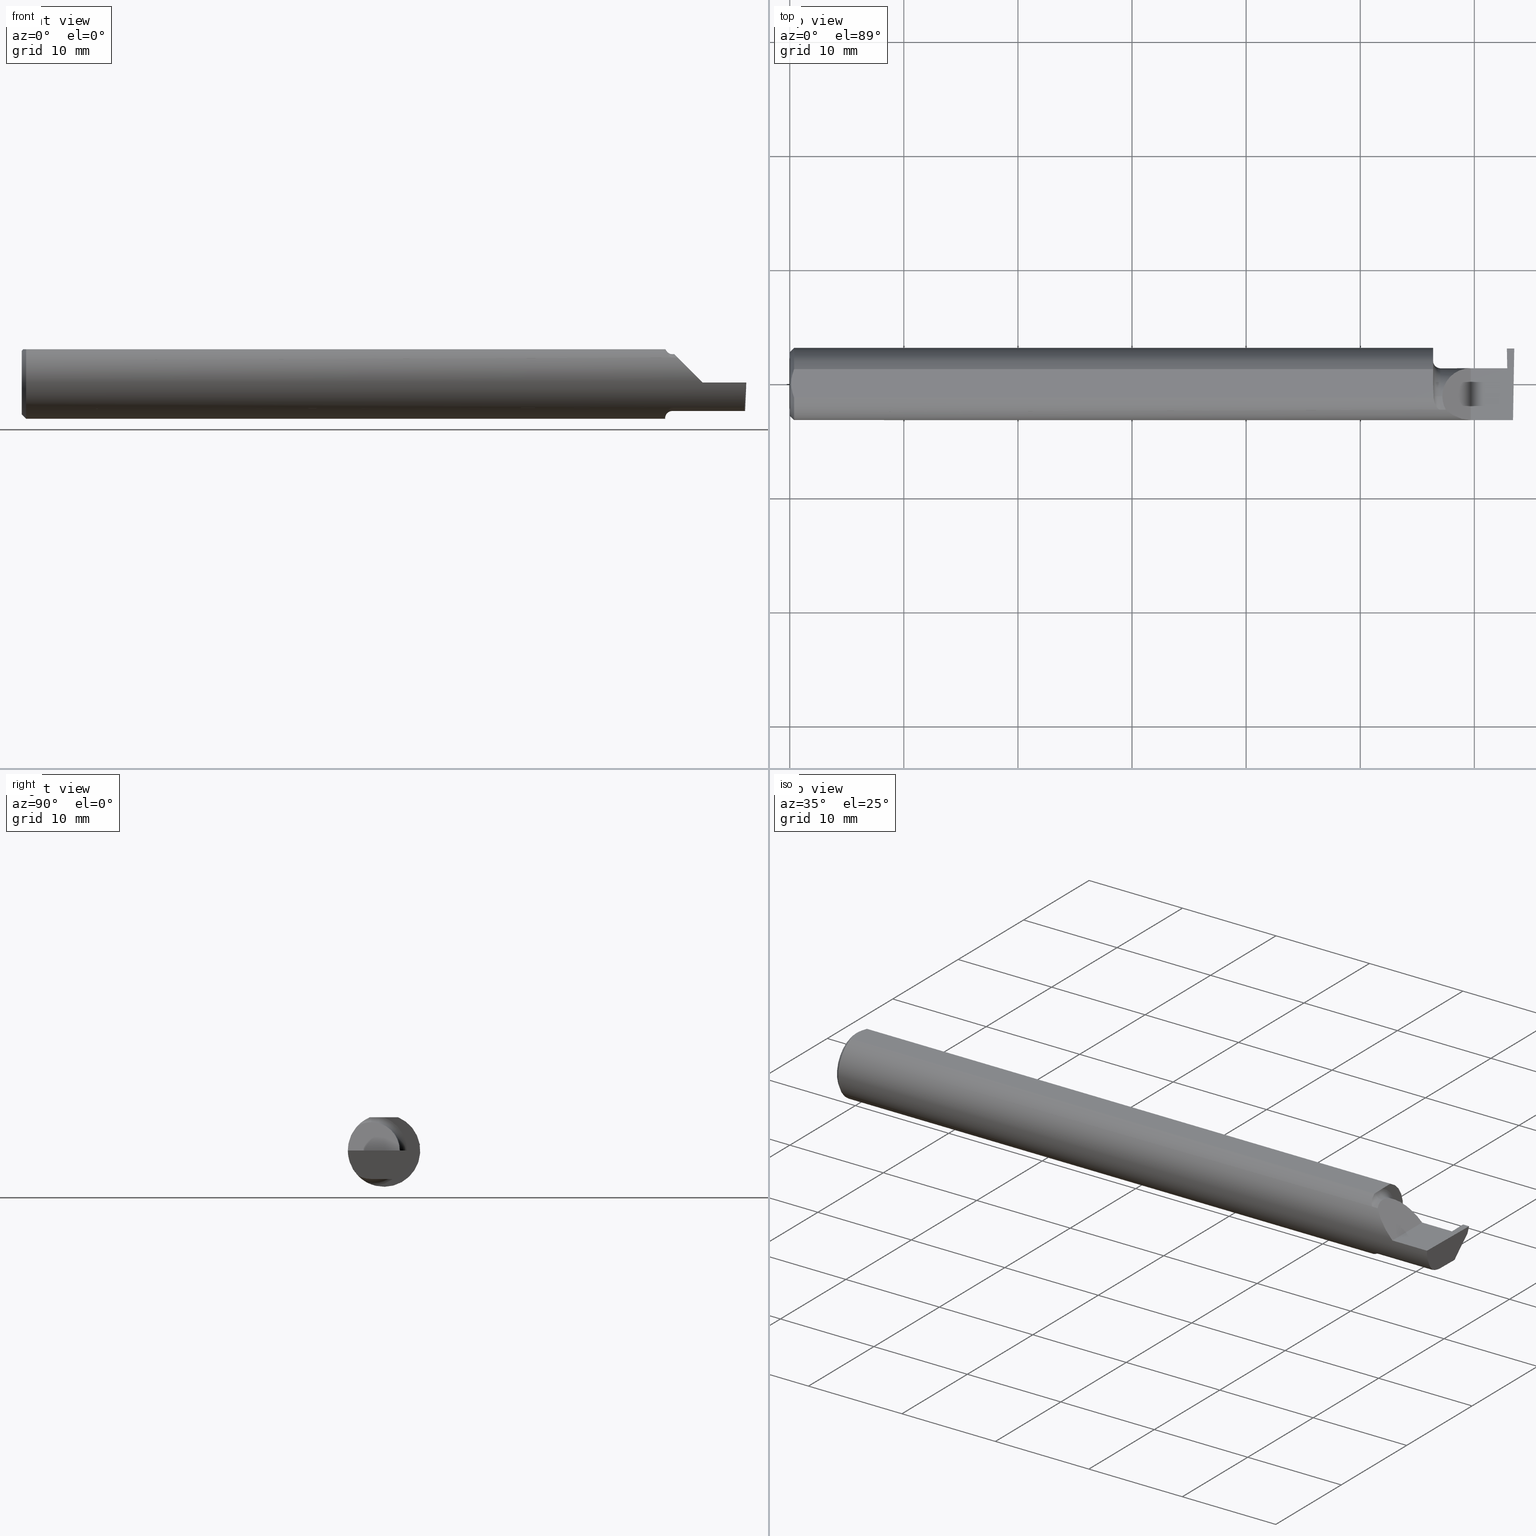
[diagram: canonical four-view strip — front | top / right | iso, engineering-drawing reading convention]
A machine part, canonical four-view strip (front | top / right | iso — engineering-drawing reading convention). The complete STEP part file that produces these views, byte-faithful:
ISO-10303-21;
HEADER;
FILE_DESCRIPTION (( 'STEP AP203' ),
    '1' );
FILE_NAME ('220800-GT025Q-4.STEP',
    '2024-07-08T23:04:22',
    ( '' ),
    ( '' ),
    'SwSTEP 2.0',
    'SolidWorks 2024',
    '' );
FILE_SCHEMA (( 'CONFIG_CONTROL_DESIGN' ));
ENDSEC;

DATA;
#1 = CARTESIAN_POINT ( 'NONE',  ( 2.220756598855983643, -0.04384999999999998621, -0.1168961077196328247 ) ) ;
#2 = DIRECTION ( 'NONE',  ( -1.291704402216664939E-16, -0.9999998142845093474, -0.0006094513490878759052 ) ) ;
#3 = VERTEX_POINT ( 'NONE', #602 ) ;
#4 = CARTESIAN_POINT ( 'NONE',  ( 2.496652745773396020, 0.07741163850316090667, -0.09800000000000001765 ) ) ;
#5 = VECTOR ( 'NONE', #757, 39.37007874015748854 ) ;
#6 = PRODUCT_RELATED_PRODUCT_CATEGORY ( 'detail', '', ( #451 ) ) ;
#7 = APPLICATION_CONTEXT ( 'configuration controlled 3d designs of mechanical parts and assemblies' ) ;
#8 = ORIENTED_EDGE ( 'NONE', *, *, #466, .F. ) ;
#9 = APPROVAL_DATE_TIME ( #681, #413 ) ;
#10 = CARTESIAN_POINT ( 'NONE',  ( 2.287163018370355072, -0.1127002472623169216, 0.06283698162964553025 ) ) ;
#11 = ADVANCED_BREP_SHAPE_REPRESENTATION ( '220800-GT025Q-4', ( #199, #52 ), #93 ) ;
#12 = VERTEX_POINT ( 'NONE', #109 ) ;
#13 = EDGE_CURVE ( 'NONE', #532, #574, #722, .T. ) ;
#14 = DIRECTION ( 'NONE',  ( 0.000000000000000000, 0.000000000000000000, 1.000000000000000000 ) ) ;
#15 = CARTESIAN_POINT ( 'NONE',  ( 2.223850144156348740, -0.06295012366509161739, -0.1079450122012244745 ) ) ;
#16 = ORIENTED_EDGE ( 'NONE', *, *, #152, .T. ) ;
#17 = LINE ( 'NONE', #197, #691 ) ;
#18 = CARTESIAN_POINT ( 'NONE',  ( 2.225064983703084476, -0.06736177101644141851, -0.1052426774175048707 ) ) ;
#19 = AXIS2_PLACEMENT_3D ( 'NONE', #27, #508, #753 ) ;
#20 = ORIENTED_EDGE ( 'NONE', *, *, #203, .T. ) ;
#21 = EDGE_CURVE ( 'NONE', #676, #31, #326, .T. ) ;
#22 = EDGE_CURVE ( 'NONE', #789, #532, #668, .T. ) ;
#23 = CARTESIAN_POINT ( 'NONE',  ( 2.221326891871145737, -0.04895916665872793172, 0.1148500000000000076 ) ) ;
#24 = ORIENTED_EDGE ( 'NONE', *, *, #370, .T. ) ;
#25 = DIRECTION ( 'NONE',  ( 1.000000000000000000, 0.000000000000000000, 0.000000000000000000 ) ) ;
#26 = ORIENTED_EDGE ( 'NONE', *, *, #778, .F. ) ;
#27 = CARTESIAN_POINT ( 'NONE',  ( 2.219999999999999751, 0.000000000000000000, 0.000000000000000000 ) ) ;
#28 = PERSON_AND_ORGANIZATION_ROLE ( 'classification_officer' ) ;
#29 = VERTEX_POINT ( 'NONE', #284 ) ;
#30 = DATE_AND_TIME ( #165, #682 ) ;
#31 = VERTEX_POINT ( 'NONE', #293 ) ;
#32 = CARTESIAN_POINT ( 'NONE',  ( 2.263628075281542529, -0.09015216647662421812, 0.08637192471845822617 ) ) ;
#33 = DIRECTION ( 'NONE',  ( -0.000000000000000000, 1.000000000000000000, -0.000000000000000000 ) ) ;
#34 = EDGE_LOOP ( 'NONE', ( #149, #755, #146, #250, #91, #206, #169, #430, #476, #313, #168, #371, #187, #183 ) ) ;
#35 = CARTESIAN_POINT ( 'NONE',  ( 0.005932194444709711773, -0.01671525318617311101, 0.1148500000000000215 ) ) ;
#36 = CARTESIAN_POINT ( 'NONE',  ( 2.475482208140546536, 0.05416464901751385369, -0.02403639734835130368 ) ) ;
#37 = VERTEX_POINT ( 'NONE', #611 ) ;
#38 = LINE ( 'NONE', #223, #513 ) ;
#39 = ADVANCED_FACE ( 'NONE', ( #481 ), #469, .F. ) ;
#40 = EDGE_LOOP ( 'NONE', ( #73, #271, #365, #647 ) ) ;
#41 = FACE_OUTER_BOUND ( 'NONE', #100, .T. ) ;
#42 = CARTESIAN_POINT ( 'NONE',  ( 2.220242610568497810, -0.03840785182185595115, -0.1189375631818110624 ) ) ;
#43 = CARTESIAN_POINT ( 'NONE',  ( 0.01499999999999999944, 0.000000000000000000, 0.000000000000000000 ) ) ;
#44 = ORIENTED_EDGE ( 'NONE', *, *, #222, .T. ) ;
#45 = CARTESIAN_POINT ( 'NONE',  ( 2.245000000000000107, -0.04385000000000001397, 0.000000000000000000 ) ) ;
#46 = CARTESIAN_POINT ( 'NONE',  ( 2.252000000000000668, 0.01355707088743670317, 0.09799999999999996214 ) ) ;
#47 = ORIENTED_EDGE ( 'NONE', *, *, #577, .F. ) ;
#48 = CC_DESIGN_PERSON_AND_ORGANIZATION_ASSIGNMENT ( #697, #114, ( #451 ) ) ;
#49 = DIRECTION ( 'NONE',  ( -1.000000000000000000, -0.000000000000000000, -0.000000000000000000 ) ) ;
#50 = VECTOR ( 'NONE', #300, 39.37007874015748854 ) ;
#51 = DIRECTION ( 'NONE',  ( -1.000000000000000000, -0.000000000000000000, -0.000000000000000000 ) ) ;
#52 = AXIS2_PLACEMENT_3D ( 'NONE', #273, #211, #754 ) ;
#53 = EDGE_LOOP ( 'NONE', ( #621, #135, #661, #24, #583, #764, #44 ) ) ;
#54 = DIRECTION ( 'NONE',  ( -1.000000000000000000, -0.000000000000000000, -0.000000000000000000 ) ) ;
#55 = CARTESIAN_POINT ( 'NONE',  ( 2.493072779947982820, -0.1248043149033065402, -0.09996577117162359916 ) ) ;
#56 = ORIENTED_EDGE ( 'NONE', *, *, #294, .F. ) ;
#57 = ORIENTED_EDGE ( 'NONE', *, *, #615, .T. ) ;
#58 = CARTESIAN_POINT ( 'NONE',  ( 0.005947935873631229539, 0.01679708999422689988, 0.1148500000000000076 ) ) ;
#59 = DIRECTION ( 'NONE',  ( -7.219510806010324627E-16, 0.9999998142845093474, 0.0006094513490878471738 ) ) ;
#60 = CARTESIAN_POINT ( 'NONE',  ( 2.494380489674781209, -0.1999019447116721915, 6.881915332554903690E-19 ) ) ;
#61 = ORIENTED_EDGE ( 'NONE', *, *, #727, .F. ) ;
#62 = CARTESIAN_POINT ( 'NONE',  ( 2.500000000000000444, 0.1221499999999999808, 1.947508823608312588E-17 ) ) ;
#63 = ADVANCED_FACE ( 'NONE', ( #547 ), #77, .F. ) ;
#64 = CARTESIAN_POINT ( 'NONE',  ( 2.224335346929611656, -0.06618116991694833473, 0.1062694618620797227 ) ) ;
#65 = ADVANCED_FACE ( 'NONE', ( #239 ), #485, .F. ) ;
#66 = VECTOR ( 'NONE', #563, 39.37007874015748143 ) ;
#67 =( BOUNDED_CURVE ( )  B_SPLINE_CURVE ( 3, ( #739, #429, #369, #189 ),
 .UNSPECIFIED., .F., .F. ) 
 B_SPLINE_CURVE_WITH_KNOTS ( ( 4, 4 ),
 ( 0.09562308769844128642, 0.5877155292609013149 ),
 .UNSPECIFIED. ) 
 CURVE ( )  GEOMETRIC_REPRESENTATION_ITEM ( )  RATIONAL_B_SPLINE_CURVE ( ( 1.000000000000000000, 0.9799220177372778284, 0.9799220177372778284, 1.000000000000000000 ) ) 
 REPRESENTATION_ITEM ( '' )  );
#68 = EDGE_LOOP ( 'NONE', ( #20, #498, #590, #153, #268 ) ) ;
#69 = DIRECTION ( 'NONE',  ( -1.000000000000000000, -0.000000000000000000, -0.000000000000000000 ) ) ;
#70 =( BOUNDED_CURVE ( )  B_SPLINE_CURVE ( 3, ( #675, #780, #361, #617 ),
 .UNSPECIFIED., .F., .T. ) 
 B_SPLINE_CURVE_WITH_KNOTS ( ( 4, 4 ),
 ( 3.140983202202990654, 4.463962699426423875 ),
 .UNSPECIFIED. ) 
 CURVE ( )  GEOMETRIC_REPRESENTATION_ITEM ( )  RATIONAL_B_SPLINE_CURVE ( ( 1.000000000000000000, 0.8593853101475599221, 0.8593853101475599221, 1.000000000000000000 ) ) 
 REPRESENTATION_ITEM ( '' )  );
#71 = ORIENTED_EDGE ( 'NONE', *, *, #202, .F. ) ;
#72 = FACE_OUTER_BOUND ( 'NONE', #456, .T. ) ;
#73 = ORIENTED_EDGE ( 'NONE', *, *, #229, .F. ) ;
#74 = ADVANCED_FACE ( 'NONE', ( #159 ), #549, .F. ) ;
#75 = DIRECTION ( 'NONE',  ( 0.000000000000000000, 0.000000000000000000, -1.000000000000000000 ) ) ;
#76 = CARTESIAN_POINT ( 'NONE',  ( 2.219999999999999751, 0.04895916665957496944, 0.1148500000000000076 ) ) ;
#77 = TOROIDAL_SURFACE ( 'NONE', #406, 0.1230000000000000121, 0.02500000000000007425 ) ;
#78 = ORIENTED_EDGE ( 'NONE', *, *, #402, .F. ) ;
#79 = FACE_OUTER_BOUND ( 'NONE', #40, .T. ) ;
#80 = CARTESIAN_POINT ( 'NONE',  ( 2.245000000000000107, -0.09015216647662482874, 0.08637192471845768493 ) ) ;
#81 = ORIENTED_EDGE ( 'NONE', *, *, #626, .T. ) ;
#82 = DIRECTION ( 'NONE',  ( -0.7071067811865459074, 0.000000000000000000, 0.7071067811865492381 ) ) ;
#83 = EDGE_CURVE ( 'NONE', #410, #400, #70, .T. ) ;
#84 = PLANE ( 'NONE',  #579 ) ;
#85 = ORIENTED_EDGE ( 'NONE', *, *, #613, .T. ) ;
#86 = PLANE ( 'NONE',  #216 ) ;
#87 = MECHANICAL_CONTEXT ( 'NONE', #7, 'mechanical' ) ;
#88 = PRODUCT_DEFINITION_SHAPE ( 'NONE', 'NONE',  #671 ) ;
#89 = EDGE_CURVE ( 'NONE', #559, #425, #421, .T. ) ;
#90 = EDGE_CURVE ( 'NONE', #3, #258, #405, .T. ) ;
#91 = ORIENTED_EDGE ( 'NONE', *, *, #690, .T. ) ;
#92 = VECTOR ( 'NONE', #207, 39.37007874015748854 ) ;
#93 =( GEOMETRIC_REPRESENTATION_CONTEXT ( 3 ) GLOBAL_UNCERTAINTY_ASSIGNED_CONTEXT ( ( #704 ) ) GLOBAL_UNIT_ASSIGNED_CONTEXT ( ( #762, #458, #147 ) ) REPRESENTATION_CONTEXT ( 'NONE', 'WORKASPACE' ) );
#94 = FACE_OUTER_BOUND ( 'NONE', #398, .T. ) ;
#95 = APPROVAL_ROLE ( '' ) ;
#96 = EDGE_LOOP ( 'NONE', ( #164, #85, #346, #123, #349 ) ) ;
#97 = DIRECTION ( 'NONE',  ( 0.000000000000000000, -0.7071067811865462405, 0.7071067811865487940 ) ) ;
#98 = CARTESIAN_POINT ( 'NONE',  ( 2.475378922426133776, 0.1158591509472974568, -0.02202698633375053949 ) ) ;
#99 = FACE_OUTER_BOUND ( 'NONE', #737, .T. ) ;
#100 = EDGE_LOOP ( 'NONE', ( #47, #740, #511, #261, #699 ) ) ;
#101 = CC_DESIGN_PERSON_AND_ORGANIZATION_ASSIGNMENT ( #385, #702, ( #608 ) ) ;
#102 = EDGE_CURVE ( 'NONE', #574, #201, #289, .T. ) ;
#103 = PLANE ( 'NONE',  #555 ) ;
#104 = DIRECTION ( 'NONE',  ( -0.03084274406794521375, -0.7067703747110382073, -0.7067703747110356538 ) ) ;
#105 = ORIENTED_EDGE ( 'NONE', *, *, #89, .F. ) ;
#106 = AXIS2_PLACEMENT_3D ( 'NONE', #598, #2, #536 ) ;
#107 = FACE_OUTER_BOUND ( 'NONE', #660, .T. ) ;
#108 = FACE_OUTER_BOUND ( 'NONE', #130, .T. ) ;
#109 = CARTESIAN_POINT ( 'NONE',  ( 2.350000000000000089, 0.05414999999999988572, 1.836970198721028825E-17 ) ) ;
#110 = VERTEX_POINT ( 'NONE', #644 ) ;
#111 = DIRECTION ( 'NONE',  ( -1.000000000000000000, -0.000000000000000000, -0.000000000000000000 ) ) ;
#112 = CARTESIAN_POINT ( 'NONE',  ( 2.252000000000000668, -0.04385000000000001397, 0.09800000000000000377 ) ) ;
#113 = ORIENTED_EDGE ( 'NONE', *, *, #90, .F. ) ;
#114 = PERSON_AND_ORGANIZATION_ROLE ( 'design_owner' ) ;
#115 = CARTESIAN_POINT ( 'NONE',  ( 0.004999999999999990563, 1.454187663965904829E-17, 0.1148500000000000076 ) ) ;
#116 = LINE ( 'NONE', #55, #634 ) ;
#117 = EDGE_LOOP ( 'NONE', ( #724, #323, #290, #482, #362, #637 ) ) ;
#118 = VECTOR ( 'NONE', #392, 39.37007874015748143 ) ;
#119 = LINE ( 'NONE', #600, #670 ) ;
#120 = DIRECTION ( 'NONE',  ( -1.224646799147352221E-16, 0.000000000000000000, -1.000000000000000000 ) ) ;
#121 = DIRECTION ( 'NONE',  ( -0.000000000000000000, 1.000000000000000000, 0.000000000000000000 ) ) ;
#122 = FACE_OUTER_BOUND ( 'NONE', #142, .T. ) ;
#123 = ORIENTED_EDGE ( 'NONE', *, *, #588, .F. ) ;
#124 = ADVANCED_FACE ( 'NONE', ( #94 ), #86, .F. ) ;
#125 = DIRECTION ( 'NONE',  ( 0.000000000000000000, -0.000000000000000000, 1.000000000000000000 ) ) ;
#126 = EDGE_CURVE ( 'NONE', #410, #749, #445, .T. ) ;
#127 = CARTESIAN_POINT ( 'NONE',  ( 2.242502509400819299, -0.09015216647698157115, 0.08637192471808538552 ) ) ;
#128 = VERTEX_POINT ( 'NONE', #635 ) ;
#129 = CARTESIAN_POINT ( 'NONE',  ( 2.494033449660867152, -0.09015216647662482874, -0.08637192471845768493 ) ) ;
#130 = EDGE_LOOP ( 'NONE', ( #708, #332, #641, #773 ) ) ;
#131 = CARTESIAN_POINT ( 'NONE',  ( 0.000000000000000000, 0.000000000000000000, 0.000000000000000000 ) ) ;
#132 = ORIENTED_EDGE ( 'NONE', *, *, #180, .F. ) ;
#133 = CARTESIAN_POINT ( 'NONE',  ( 2.219999999999999751, 0.1541499999999999815, 0.000000000000000000 ) ) ;
#134 = CARTESIAN_POINT ( 'NONE',  ( 2.229117122045868538, -0.07738857672815997735, 0.09808127502738611669 ) ) ;
#135 = ORIENTED_EDGE ( 'NONE', *, *, #102, .T. ) ;
#136 = DIRECTION ( 'NONE',  ( 3.192376091676807012E-05, 0.9999999994904366085, -2.817425088418965867E-16 ) ) ;
#137 = CARTESIAN_POINT ( 'NONE',  ( 2.245000000000000107, -0.09015216647662478711, -0.08637192471845771269 ) ) ;
#138 = VECTOR ( 'NONE', #769, 39.37007874015748143 ) ;
#139 = EDGE_LOOP ( 'NONE', ( #752, #16, #218, #587 ) ) ;
#140 = CARTESIAN_POINT ( 'NONE',  ( 2.475160734290017928, 0.05314349951121612181, -0.01618353831829611247 ) ) ;
#141 = CARTESIAN_POINT ( 'NONE',  ( 2.359750000000000014, -0.09015216647662482874, -0.08637192471845768493 ) ) ;
#142 = EDGE_LOOP ( 'NONE', ( #678, #524, #594, #718, #81, #488, #57, #132 ) ) ;
#143 = ADVANCED_FACE ( 'NONE', ( #79 ), #630, .F. ) ;
#144 = LINE ( 'NONE', #580, #92 ) ;
#145 = EDGE_CURVE ( 'NONE', #264, #3, #259, .T. ) ;
#146 = ORIENTED_EDGE ( 'NONE', *, *, #552, .T. ) ;
#147 =( NAMED_UNIT ( * ) SI_UNIT ( $, .STERADIAN. ) SOLID_ANGLE_UNIT ( ) );
#148 = DESIGN_CONTEXT ( 'detailed design', #729, 'design' ) ;
#149 = ORIENTED_EDGE ( 'NONE', *, *, #464, .F. ) ;
#150 = CC_DESIGN_APPROVAL ( #510, ( #671 ) ) ;
#151 = DIRECTION ( 'NONE',  ( 0.04089967808029263546, 0.000000000000000000, -0.9991632580979589173 ) ) ;
#152 = EDGE_CURVE ( 'NONE', #110, #37, #17, .T. ) ;
#153 = ORIENTED_EDGE ( 'NONE', *, *, #588, .T. ) ;
#154 = EDGE_CURVE ( 'NONE', #394, #550, #144, .T. ) ;
#155 = CARTESIAN_POINT ( 'NONE',  ( 2.475482208140546536, 0.05416464901751173039, -0.02403639734835130368 ) ) ;
#156 = ORIENTED_EDGE ( 'NONE', *, *, #22, .T. ) ;
#157 = LINE ( 'NONE', #403, #316 ) ;
#158 = DIRECTION ( 'NONE',  ( -0.03699114979479236481, 0.7066228325057374304, 0.7066228325057348769 ) ) ;
#159 = FACE_OUTER_BOUND ( 'NONE', #680, .T. ) ;
#160 = AXIS2_PLACEMENT_3D ( 'NONE', #210, #657, #151 ) ;
#161 = CARTESIAN_POINT ( 'NONE',  ( 2.219999999999999751, 0.0001781444078671173391, 0.1148500000000000076 ) ) ;
#162 = CARTESIAN_POINT ( 'NONE',  ( 2.474499999999999922, -0.04385000000000001397, 0.000000000000000000 ) ) ;
#163 = DIRECTION ( 'NONE',  ( -1.000000000000000000, -0.000000000000000000, -0.000000000000000000 ) ) ;
#164 = ORIENTED_EDGE ( 'NONE', *, *, #83, .T. ) ;
#165 = CALENDAR_DATE ( 2024, 8, 7 ) ;
#166 = CARTESIAN_POINT ( 'NONE',  ( 2.221090261106631658, -0.02916888161107699176, 0.1148499999999999938 ) ) ;
#167 = EDGE_CURVE ( 'NONE', #562, #649, #473, .T. ) ;
#168 = ORIENTED_EDGE ( 'NONE', *, *, #260, .F. ) ;
#169 = ORIENTED_EDGE ( 'NONE', *, *, #638, .F. ) ;
#170 = DATE_TIME_ROLE ( 'classification_date' ) ;
#171 = LINE ( 'NONE', #496, #367 ) ;
#172 = CARTESIAN_POINT ( 'NONE',  ( 2.245000000000000107, -0.04385000000000001397, 0.000000000000000000 ) ) ;
#173 = DIRECTION ( 'NONE',  ( 0.000000000000000000, 0.000000000000000000, 1.000000000000000000 ) ) ;
#174 = DIRECTION ( 'NONE',  ( 1.000000000000000000, 0.000000000000000000, -0.000000000000000000 ) ) ;
#175 = AXIS2_PLACEMENT_3D ( 'NONE', #324, #319, #82 ) ;
#176 = AXIS2_PLACEMENT_3D ( 'NONE', #610, #352, #480 ) ;
#177 = DIRECTION ( 'NONE',  ( 0.000000000000000000, 0.000000000000000000, 1.000000000000000000 ) ) ;
#178 = ORIENTED_EDGE ( 'NONE', *, *, #751, .T. ) ;
#179 = CC_DESIGN_DATE_AND_TIME_ASSIGNMENT ( #738, #170, ( #785 ) ) ;
#180 = EDGE_CURVE ( 'NONE', #400, #735, #565, .T. ) ;
#181 = COORDINATED_UNIVERSAL_TIME_OFFSET ( 8, 0, .BEHIND. ) ;
#182 = CARTESIAN_POINT ( 'NONE',  ( 2.220756598855983643, -0.04384999999999998621, -0.1168961077196328247 ) ) ;
#183 = ORIENTED_EDGE ( 'NONE', *, *, #751, .F. ) ;
#184 = CARTESIAN_POINT ( 'NONE',  ( 0.004999999999999962808, 0.008410227287019804779, 0.1148500000000000076 ) ) ;
#185 = B_SPLINE_CURVE_WITH_KNOTS ( 'NONE', 3,
 ( #314, #648, #35, #521, #584, #272 ),
 .UNSPECIFIED., .F., .F.,
 ( 4, 2, 4 ),
 ( 0.003658435455108828907, 0.004289327297787135992, 0.004920219140465443078 ),
 .UNSPECIFIED. ) ;
#186 = CARTESIAN_POINT ( 'NONE',  ( 2.219999999999999751, -0.04385000000000001397, 0.000000000000000000 ) ) ;
#187 = ORIENTED_EDGE ( 'NONE', *, *, #528, .F. ) ;
#188 = CARTESIAN_POINT ( 'NONE',  ( 0.009410502401328750890, 0.03310661131402438395, 0.1148499999999999938 ) ) ;
#189 = CARTESIAN_POINT ( 'NONE',  ( 2.494536841675280670, -0.04385000000000003478, -0.09799999999999998990 ) ) ;
#190 = VECTOR ( 'NONE', #463, 39.37007874015748143 ) ;
#191 = ORIENTED_EDGE ( 'NONE', *, *, #552, .F. ) ;
#192 = DIRECTION ( 'NONE',  ( 1.000000000000000000, -0.000000000000000000, -0.000000000000000000 ) ) ;
#193 = CARTESIAN_POINT ( 'NONE',  ( 0.01499999999999999944, 0.000000000000000000, 0.000000000000000000 ) ) ;
#194 = ORIENTED_EDGE ( 'NONE', *, *, #154, .T. ) ;
#195 = CARTESIAN_POINT ( 'NONE',  ( 2.479356049968028497, 0.03988613728104852679, -0.09799999999999974010 ) ) ;
#196 = ORIENTED_EDGE ( 'NONE', *, *, #401, .F. ) ;
#197 = CARTESIAN_POINT ( 'NONE',  ( 2.220000000000000195, -0.04385000000000001397, 0.09800000000000000377 ) ) ;
#198 = LENGTH_MEASURE_WITH_UNIT ( LENGTH_MEASURE( 0.02539999999999999897 ), #205 );
#199 = MANIFOLD_SOLID_BREP ( 'Front Angle', #592 ) ;
#200 = CIRCLE ( 'NONE', #252, 0.09800000000000000377 ) ;
#201 = VERTEX_POINT ( 'NONE', #747 ) ;
#202 = EDGE_CURVE ( 'NONE', #425, #448, #639, .T. ) ;
#203 = EDGE_CURVE ( 'NONE', #394, #448, #517, .T. ) ;
#204 = DIRECTION ( 'NONE',  ( 0.03490478697967554916, 0.000000000000000000, -0.9993906422645267851 ) ) ;
#205 =( LENGTH_UNIT ( ) NAMED_UNIT ( * ) SI_UNIT ( $, .METRE. ) );
#206 = ORIENTED_EDGE ( 'NONE', *, *, #283, .F. ) ;
#207 = DIRECTION ( 'NONE',  ( -0.03866673033866090819, 0.3253246823342272331, 0.9448114812114909444 ) ) ;
#208 = CARTESIAN_POINT ( 'NONE',  ( 2.499227245409318954, 0.1138861372810479888, -0.02400000000000000050 ) ) ;
#209 = ORIENTED_EDGE ( 'NONE', *, *, #572, .T. ) ;
#210 = CARTESIAN_POINT ( 'NONE',  ( 2.475482208140548313, -2.422866332892217311, -0.02554602750237028666 ) ) ;
#211 = DIRECTION ( 'NONE',  ( 0.000000000000000000, 0.000000000000000000, 1.000000000000000000 ) ) ;
#212 = CC_DESIGN_DATE_AND_TIME_ASSIGNMENT ( #30, #330, ( #671 ) ) ;
#213 = ADVANCED_FACE ( 'NONE', ( #438 ), #685, .T. ) ;
#214 = DIRECTION ( 'NONE',  ( -1.000000000000000000, -0.000000000000000000, -0.000000000000000000 ) ) ;
#215 = ORIENTED_EDGE ( 'NONE', *, *, #426, .F. ) ;
#216 = AXIS2_PLACEMENT_3D ( 'NONE', #450, #266, #204 ) ;
#217 = LINE ( 'NONE', #534, #432 ) ;
#218 = ORIENTED_EDGE ( 'NONE', *, *, #377, .F. ) ;
#219 = DIRECTION ( 'NONE',  ( -1.000000000000000000, 1.290958279323718807E-16, 1.224646799147352221E-16 ) ) ;
#220 = LINE ( 'NONE', #36, #118 ) ;
#221 = DIRECTION ( 'NONE',  ( -0.000000000000000000, 1.000000000000000000, 1.224646799147353207E-16 ) ) ;
#222 = EDGE_CURVE ( 'NONE', #627, #532, #185, .T. ) ;
#223 = CARTESIAN_POINT ( 'NONE',  ( 0.000000000000000000, 0.04895916665957456698, 0.1148500000000000076 ) ) ;
#224 = DIRECTION ( 'NONE',  ( 0.000000000000000000, 0.000000000000000000, 1.000000000000000000 ) ) ;
#225 = CARTESIAN_POINT ( 'NONE',  ( 2.221326891871145737, -0.04895916665872793172, 0.1148500000000000076 ) ) ;
#226 = ORIENTED_EDGE ( 'NONE', *, *, #203, .F. ) ;
#227 = VECTOR ( 'NONE', #49, 39.37007874015748143 ) ;
#228 = APPROVAL_DATE_TIME ( #719, #633 ) ;
#229 = EDGE_CURVE ( 'NONE', #631, #110, #256, .T. ) ;
#230 = CARTESIAN_POINT ( 'NONE',  ( 2.479356049968030273, -2.422821260986650405, -0.09950090062502339738 ) ) ;
#231 = AXIS2_PLACEMENT_3D ( 'NONE', #539, #292, #472 ) ;
#232 = CARTESIAN_POINT ( 'NONE',  ( 2.350000000000000089, 0.05414999999999988572, 1.836970198721028825E-17 ) ) ;
#233 = DIRECTION ( 'NONE',  ( -1.000000000000000000, -0.000000000000000000, -0.000000000000000000 ) ) ;
#234 = LINE ( 'NONE', #484, #540 ) ;
#235 = CARTESIAN_POINT ( 'NONE',  ( 2.475378922426133776, 0.1158591509472972486, -0.02202698633375074766 ) ) ;
#236 = PERSON_AND_ORGANIZATION ( #471, #672 ) ;
#237 = EDGE_CURVE ( 'NONE', #550, #258, #457, .T. ) ;
#238 = CARTESIAN_POINT ( 'NONE',  ( 2.474499999999999922, 0.1221499999999999808, -3.306546357697866753E-19 ) ) ;
#239 = FACE_OUTER_BOUND ( 'NONE', #651, .T. ) ;
#240 = ORIENTED_EDGE ( 'NONE', *, *, #712, .T. ) ;
#241 = VECTOR ( 'NONE', #777, 39.37007874015748854 ) ;
#242 = AXIS2_PLACEMENT_3D ( 'NONE', #162, #344, #224 ) ;
#243 = CARTESIAN_POINT ( 'NONE',  ( 0.01499999999999999944, 0.000000000000000000, 0.000000000000000000 ) ) ;
#244 = VERTEX_POINT ( 'NONE', #663 ) ;
#245 = FACE_OUTER_BOUND ( 'NONE', #578, .T. ) ;
#246 = CARTESIAN_POINT ( 'NONE',  ( 2.245000000000000107, -0.04385000000000001397, 0.000000000000000000 ) ) ;
#247 = ORIENTED_EDGE ( 'NONE', *, *, #743, .F. ) ;
#248 = CARTESIAN_POINT ( 'NONE',  ( 2.219999999999999751, -0.007185495981951162819, 0.1148500000000000076 ) ) ;
#249 = CARTESIAN_POINT ( 'NONE',  ( 2.221929090759344305, -0.05370719728932729642, -0.1128289886859671631 ) ) ;
#250 = ORIENTED_EDGE ( 'NONE', *, *, #309, .T. ) ;
#251 = CARTESIAN_POINT ( 'NONE',  ( 2.240195245915135303, -0.08928014009840869181, 0.08728826463237990274 ) ) ;
#252 = AXIS2_PLACEMENT_3D ( 'NONE', #742, #54, #14 ) ;
#253 = VECTOR ( 'NONE', #509, 39.37007874015748143 ) ;
#254 = CC_DESIGN_APPROVAL ( #633, ( #608 ) ) ;
#255 = ORIENTED_EDGE ( 'NONE', *, *, #90, .T. ) ;
#256 =( BOUNDED_CURVE ( )  B_SPLINE_CURVE ( 3, ( #32, #525, #337, #531 ),
 .UNSPECIFIED., .F., .F. ) 
 B_SPLINE_CURVE_WITH_KNOTS ( ( 4, 4 ),
 ( 5.791092865617133434, 6.283185307179586232 ),
 .UNSPECIFIED. ) 
 CURVE ( )  GEOMETRIC_REPRESENTATION_ITEM ( )  RATIONAL_B_SPLINE_CURVE ( ( 1.000000000000000000, 0.9799220177372784946, 0.9799220177372784946, 1.000000000000000000 ) ) 
 REPRESENTATION_ITEM ( '' )  );
#257 = DIRECTION ( 'NONE',  ( -1.000000000000000000, -0.000000000000000000, -0.000000000000000000 ) ) ;
#258 = VERTEX_POINT ( 'NONE', #599 ) ;
#259 = LINE ( 'NONE', #696, #66 ) ;
#260 = EDGE_CURVE ( 'NONE', #649, #694, #38, .T. ) ;
#261 = ORIENTED_EDGE ( 'NONE', *, *, #464, .T. ) ;
#262 = CARTESIAN_POINT ( 'NONE',  ( 2.475482208140546536, 0.05115612325138354372, -0.02403823089877875352 ) ) ;
#263 = AXIS2_PLACEMENT_3D ( 'NONE', #557, #125, #174 ) ;
#264 = VERTEX_POINT ( 'NONE', #155 ) ;
#265 = VECTOR ( 'NONE', #158, 39.37007874015748143 ) ;
#266 = DIRECTION ( 'NONE',  ( 0.9992391710281357531, 0.01740988840156783637, 0.03489949668475364475 ) ) ;
#267 = PERSON_AND_ORGANIZATION ( #471, #672 ) ;
#268 = ORIENTED_EDGE ( 'NONE', *, *, #776, .T. ) ;
#269 = FACE_OUTER_BOUND ( 'NONE', #383, .T. ) ;
#270 = COORDINATED_UNIVERSAL_TIME_OFFSET ( 8, 0, .BEHIND. ) ;
#271 = ORIENTED_EDGE ( 'NONE', *, *, #690, .F. ) ;
#272 = CARTESIAN_POINT ( 'NONE',  ( 0.01499999999999999944, -0.04895916665957456698, 0.1148500000000000076 ) ) ;
#273 = CARTESIAN_POINT ( 'NONE',  ( 0.000000000000000000, 0.000000000000000000, 0.000000000000000000 ) ) ;
#274 = B_SPLINE_CURVE_WITH_KNOTS ( 'NONE', 3,
 ( #137, #380, #490, #564, #558, #312, #494, #18, #15, #249, #424, #497 ),
 .UNSPECIFIED., .F., .F.,
 ( 4, 2, 2, 2, 2, 4 ),
 ( 1.963988863453036158E-07, 0.0002052720857047457591, 0.0004103477725231461813, 0.0008204991461599577592, 0.001230650519796769446, 0.001640801893433581349 ),
 .UNSPECIFIED. ) ;
#275 = ORIENTED_EDGE ( 'NONE', *, *, #167, .T. ) ;
#276 = VECTOR ( 'NONE', #121, 39.37007874015748143 ) ;
#277 = VECTOR ( 'NONE', #604, 39.37007874015748143 ) ;
#278 = CARTESIAN_POINT ( 'NONE',  ( 2.399999999999999911, 0.1138861372810479888, -0.02400000000000000050 ) ) ;
#279 = CARTESIAN_POINT ( 'NONE',  ( 2.474499999999999922, 0.05415000000000001062, 3.429016444442839995E-17 ) ) ;
#280 = ORIENTED_EDGE ( 'NONE', *, *, #401, .T. ) ;
#281 = CARTESIAN_POINT ( 'NONE',  ( 2.220000000000000195, -0.04385000000000001397, 0.000000000000000000 ) ) ;
#282 = CARTESIAN_POINT ( 'NONE',  ( 2.500000000000000000, 0.03988613728104772188, -0.09800000000000000377 ) ) ;
#283 = EDGE_CURVE ( 'NONE', #687, #631, #399, .T. ) ;
#284 = CARTESIAN_POINT ( 'NONE',  ( 0.000000000000000000, 0.000000000000000000, -0.1098500000000000032 ) ) ;
#285 = ADVANCED_FACE ( 'NONE', ( #701 ), #103, .F. ) ;
#286 = ORIENTED_EDGE ( 'NONE', *, *, #154, .F. ) ;
#287 = DIRECTION ( 'NONE',  ( -1.000000000000000000, -0.000000000000000000, -0.000000000000000000 ) ) ;
#288 = CARTESIAN_POINT ( 'NONE',  ( 2.219999999999999751, -0.02715330672748003313, -0.1218614805168695830 ) ) ;
#289 = B_SPLINE_CURVE_WITH_KNOTS ( 'NONE', 3,
 ( #225, #474, #409, #389, #505, #379 ),
 .UNSPECIFIED., .F., .F.,
 ( 4, 2, 4 ),
 ( 0.009355404735398592173, 0.009420041905761879220, 0.009484679076125168001 ),
 .UNSPECIFIED. ) ;
#290 = ORIENTED_EDGE ( 'NONE', *, *, #712, .F. ) ;
#291 = DIRECTION ( 'NONE',  ( 0.000000000000000000, 0.000000000000000000, -1.000000000000000000 ) ) ;
#292 = DIRECTION ( 'NONE',  ( 0.000000000000000000, -1.000000000000000000, 0.000000000000000000 ) ) ;
#293 = CARTESIAN_POINT ( 'NONE',  ( 2.245000000000000107, -0.04385000000000000009, -0.09800000000000001765 ) ) ;
#294 = EDGE_CURVE ( 'NONE', #258, #465, #217, .T. ) ;
#295 = CARTESIAN_POINT ( 'NONE',  ( 2.500000000000000000, -0.04385000000000002091, -0.09799999999999998990 ) ) ;
#296 = CARTESIAN_POINT ( 'NONE',  ( 2.219999999999999751, -0.02715330672748003313, -0.1218614805168695830 ) ) ;
#297 = ORIENTED_EDGE ( 'NONE', *, *, #368, .T. ) ;
#298 = CARTESIAN_POINT ( 'NONE',  ( 0.000000000000000000, 0.000000000000000000, 0.000000000000000000 ) ) ;
#299 = CYLINDRICAL_SURFACE ( 'NONE', #176, 0.09800000000000000377 ) ;
#300 = DIRECTION ( 'NONE',  ( 0.01744642479411464761, 0.9998477995484629233, -2.135106780035675284E-18 ) ) ;
#301 = DIRECTION ( 'NONE',  ( 0.000000000000000000, 0.000000000000000000, 1.000000000000000000 ) ) ;
#302 = VECTOR ( 'NONE', #136, 39.37007874015748143 ) ;
#303 = AXIS2_PLACEMENT_3D ( 'NONE', #243, #315, #620 ) ;
#304 = DIRECTION ( 'NONE',  ( 0.000000000000000000, 0.000000000000000000, -1.000000000000000000 ) ) ;
#305 = ADVANCED_FACE ( 'NONE', ( #467 ), #333, .T. ) ;
#306 = EDGE_LOOP ( 'NONE', ( #275, #386, #240 ) ) ;
#307 = DIRECTION ( 'NONE',  ( 0.7071067811865476838, 0.000000000000000000, -0.7071067811865473507 ) ) ;
#308 = CARTESIAN_POINT ( 'NONE',  ( 2.222489051389807013, -0.05793447593674648510, 0.1110239341513685057 ) ) ;
#309 = EDGE_CURVE ( 'NONE', #559, #612, #157, .T. ) ;
#310 = VERTEX_POINT ( 'NONE', #161 ) ;
#311 = ADVANCED_FACE ( 'NONE', ( #107 ), #632, .F. ) ;
#312 = CARTESIAN_POINT ( 'NONE',  ( 2.230226514481665312, -0.07966992494485874987, -0.09623747760188196276 ) ) ;
#313 = ORIENTED_EDGE ( 'NONE', *, *, #713, .F. ) ;
#314 = CARTESIAN_POINT ( 'NONE',  ( 0.004999999999999990563, 1.454187663965904829E-17, 0.1148500000000000076 ) ) ;
#315 = DIRECTION ( 'NONE',  ( 1.000000000000000000, 0.000000000000000000, 0.000000000000000000 ) ) ;
#316 = VECTOR ( 'NONE', #652, 39.37007874015748143 ) ;
#317 = ORIENTED_EDGE ( 'NONE', *, *, #21, .T. ) ;
#318 = CC_DESIGN_PERSON_AND_ORGANIZATION_ASSIGNMENT ( #640, #28, ( #785 ) ) ;
#319 = DIRECTION ( 'NONE',  ( -0.7071067811865492381, 0.000000000000000000, -0.7071067811865459074 ) ) ;
#320 = ADVANCED_FACE ( 'NONE', ( #269 ), #341, .F. ) ;
#321 = DIRECTION ( 'NONE',  ( 0.000000000000000000, 0.000000000000000000, 1.000000000000000000 ) ) ;
#322 = ORIENTED_EDGE ( 'NONE', *, *, #760, .T. ) ;
#323 = ORIENTED_EDGE ( 'NONE', *, *, #528, .T. ) ;
#324 = CARTESIAN_POINT ( 'NONE',  ( 2.350000000000000089, -0.2000000000000000111, 1.836970198721028825E-17 ) ) ;
#325 = PERSON_AND_ORGANIZATION ( #471, #672 ) ;
#326 = CIRCLE ( 'NONE', #340, 0.02500000000000007425 ) ;
#327 = ORIENTED_EDGE ( 'NONE', *, *, #426, .T. ) ;
#328 = LOCAL_TIME ( 16, 4, 22.00000000000000000, #270 ) ;
#329 = CARTESIAN_POINT ( 'NONE',  ( 2.220400390612615737, -0.01449983562810953051, 0.1148500000000000076 ) ) ;
#330 = DATE_TIME_ROLE ( 'creation_date' ) ;
#331 = CARTESIAN_POINT ( 'NONE',  ( 2.494256244271084721, -0.1126860773865890480, -0.06285177167860772629 ) ) ;
#332 = ORIENTED_EDGE ( 'NONE', *, *, #102, .F. ) ;
#333 = CYLINDRICAL_SURFACE ( 'NONE', #499, 0.1248500000000000026 ) ;
#334 = APPROVAL_DATE_TIME ( #642, #510 ) ;
#335 = ORIENTED_EDGE ( 'NONE', *, *, #89, .T. ) ;
#336 = ADVANCED_FACE ( 'NONE', ( #41 ), #347, .T. ) ;
#337 = CARTESIAN_POINT ( 'NONE',  ( 2.252000000000000668, -0.06008937020638503712, 0.09799999999999998990 ) ) ;
#338 = LINE ( 'NONE', #141, #567 ) ;
#339 = EDGE_LOOP ( 'NONE', ( #322, #444, #462, #71, #105, #191, #442 ) ) ;
#340 = AXIS2_PLACEMENT_3D ( 'NONE', #728, #221, #786 ) ;
#341 = PLANE ( 'NONE',  #160 ) ;
#342 = ADVANCED_FACE ( 'NONE', ( #765 ), #781, .F. ) ;
#343 = EDGE_CURVE ( 'NONE', #201, #310, #614, .T. ) ;
#344 = DIRECTION ( 'NONE',  ( -1.000000000000000000, -0.000000000000000000, -0.000000000000000000 ) ) ;
#345 = DIRECTION ( 'NONE',  ( 0.000000000000000000, -0.9455185755993165131, 0.3255681544571576991 ) ) ;
#346 = ORIENTED_EDGE ( 'NONE', *, *, #145, .T. ) ;
#347 = CYLINDRICAL_SURFACE ( 'NONE', #447, 0.09800000000000000377 ) ;
#348 = CARTESIAN_POINT ( 'NONE',  ( 2.292592929112563738, 0.05415000000000004532, 0.05740707088743669112 ) ) ;
#349 = ORIENTED_EDGE ( 'NONE', *, *, #126, .F. ) ;
#350 = LINE ( 'NONE', #575, #703 ) ;
#351 = CARTESIAN_POINT ( 'NONE',  ( 2.479353376795600639, -0.04385000000000004172, -0.09799999999999998990 ) ) ;
#352 = DIRECTION ( 'NONE',  ( -1.000000000000000000, -0.000000000000000000, -0.000000000000000000 ) ) ;
#353 = CARTESIAN_POINT ( 'NONE',  ( 2.500000000000000000, -0.2000000000000000111, 0.000000000000000000 ) ) ;
#354 = ADVANCED_FACE ( 'NONE', ( #677 ), #609, .T. ) ;
#355 = AXIS2_PLACEMENT_3D ( 'NONE', #603, #725, #291 ) ;
#356 = CC_DESIGN_SECURITY_CLASSIFICATION ( #785, ( #608 ) ) ;
#357 = CARTESIAN_POINT ( 'NONE',  ( 0.004999999999999990563, 1.454187663965904829E-17, 0.1148500000000000076 ) ) ;
#358 = DIRECTION ( 'NONE',  ( 0.000000000000000000, -0.3255681544571576991, -0.9455185755993165131 ) ) ;
#359 = DIRECTION ( 'NONE',  ( 1.000000000000000000, -0.000000000000000000, -0.000000000000000000 ) ) ;
#360 = DIRECTION ( 'NONE',  ( -1.000000000000000000, -0.000000000000000000, -0.000000000000000000 ) ) ;
#361 = CARTESIAN_POINT ( 'NONE',  ( 2.477853341463135184, 0.03970102213383049083, -0.06931214282740386090 ) ) ;
#362 = ORIENTED_EDGE ( 'NONE', *, *, #576, .T. ) ;
#363 = CARTESIAN_POINT ( 'NONE',  ( 2.475482208140546536, 0.05115612325138354372, -0.02403823089877875352 ) ) ;
#364 = CARTESIAN_POINT ( 'NONE',  ( 2.263628075281542529, -0.09015216647662421812, 0.08637192471845822617 ) ) ;
#365 = ORIENTED_EDGE ( 'NONE', *, *, #449, .T. ) ;
#366 = APPROVAL_ROLE ( '' ) ;
#367 = VECTOR ( 'NONE', #359, 39.37007874015748143 ) ;
#368 = EDGE_CURVE ( 'NONE', #29, #789, #730, .T. ) ;
#369 = CARTESIAN_POINT ( 'NONE',  ( 2.494253479596434175, -0.06008937020638530080, -0.09800000000000001765 ) ) ;
#370 = EDGE_CURVE ( 'NONE', #310, #649, #560, .T. ) ;
#371 = ORIENTED_EDGE ( 'NONE', *, *, #167, .F. ) ;
#372 = DIRECTION ( 'NONE',  ( 0.000000000000000000, 0.000000000000000000, 1.000000000000000000 ) ) ;
#373 = EDGE_LOOP ( 'NONE', ( #61, #629, #78, #542, #504 ) ) ;
#374 = DIRECTION ( 'NONE',  ( 1.000000000000000000, 0.000000000000000000, 0.000000000000000000 ) ) ;
#375 = CARTESIAN_POINT ( 'NONE',  ( 2.474499999999999922, 0.05414999123725555696, -4.144270477499288293E-05 ) ) ;
#376 = ORIENTED_EDGE ( 'NONE', *, *, #180, .T. ) ;
#377 = EDGE_CURVE ( 'NONE', #687, #37, #200, .T. ) ;
#378 = EDGE_CURVE ( 'NONE', #128, #410, #415, .T. ) ;
#379 = CARTESIAN_POINT ( 'NONE',  ( 2.221365755776839368, -0.04385000000000001397, 0.1148500000000000076 ) ) ;
#380 = CARTESIAN_POINT ( 'NONE',  ( 2.242259638933030708, -0.09015216647662496752, -0.08637192471845753228 ) ) ;
#381 = VECTOR ( 'NONE', #726, 39.37007874015748854 ) ;
#382 = TOROIDAL_SURFACE ( 'NONE', #393, 0.1230000000000000121, 0.02500000000000007425 ) ;
#383 = EDGE_LOOP ( 'NONE', ( #376, #684, #698 ) ) ;
#384 = CARTESIAN_POINT ( 'NONE',  ( 2.474831655309489786, 0.05414656493488109734, -0.008143655253979618230 ) ) ;
#385 = PERSON_AND_ORGANIZATION ( #471, #672 ) ;
#386 = ORIENTED_EDGE ( 'NONE', *, *, #370, .F. ) ;
#387 = APPROVAL_STATUS ( 'not_yet_approved' ) ;
#388 = ORIENTED_EDGE ( 'NONE', *, *, #492, .T. ) ;
#389 = CARTESIAN_POINT ( 'NONE',  ( 2.221362484147031413, -0.04555293790425277156, 0.1148500000000000076 ) ) ;
#390 = APPLICATION_PROTOCOL_DEFINITION ( 'international standard', 'config_control_design', 1994, #729 ) ;
#391 = AXIS2_PLACEMENT_3D ( 'NONE', #45, #595, #470 ) ;
#392 = DIRECTION ( 'NONE',  ( 0.04089968566329186400, 0.0006089413954177150604, -0.9991630722274622567 ) ) ;
#393 = AXIS2_PLACEMENT_3D ( 'NONE', #172, #779, #416 ) ;
#394 = VERTEX_POINT ( 'NONE', #787 ) ;
#395 = APPROVAL_PERSON_ORGANIZATION ( #446, #510, #95 ) ;
#396 = DIRECTION ( 'NONE',  ( 0.05230942393459273726, 0.000000000000000000, -0.9986309249005015376 ) ) ;
#397 = SECURITY_CLASSIFICATION_LEVEL ( 'unclassified' ) ;
#398 = EDGE_LOOP ( 'NONE', ( #286, #566, #255, #643 ) ) ;
#399 = LINE ( 'NONE', #650, #138 ) ;
#400 = VERTEX_POINT ( 'NONE', #363 ) ;
#401 = EDGE_CURVE ( 'NONE', #550, #425, #171, .T. ) ;
#402 = EDGE_CURVE ( 'NONE', #694, #627, #573, .T. ) ;
#403 = CARTESIAN_POINT ( 'NONE',  ( 3.749399456654637998E-32, -0.1248500000000000026, 3.061616997868380676E-16 ) ) ;
#404 = CARTESIAN_POINT ( 'NONE',  ( 2.495690077103728921, -0.1248499999950965084, 1.733801157256528502E-17 ) ) ;
#405 = LINE ( 'NONE', #656, #241 ) ;
#406 = AXIS2_PLACEMENT_3D ( 'NONE', #711, #163, #173 ) ;
#407 = VECTOR ( 'NONE', #360, 39.37007874015748143 ) ;
#408 = CARTESIAN_POINT ( 'NONE',  ( 2.220000000000000195, -0.04385000000000001397, 0.000000000000000000 ) ) ;
#409 = CARTESIAN_POINT ( 'NONE',  ( 2.221349474459144435, -0.04725615951663613562, 0.1148499999999999938 ) ) ;
#410 = VERTEX_POINT ( 'NONE', #351 ) ;
#411 = COORDINATED_UNIVERSAL_TIME_OFFSET ( 8, 0, .BEHIND. ) ;
#412 = DIRECTION ( 'NONE',  ( -1.000000000000000000, -0.000000000000000000, -0.000000000000000000 ) ) ;
#413 = APPROVAL ( #431, 'UNSPECIFIED' ) ;
#414 = DIRECTION ( 'NONE',  ( 0.000000000000000000, 0.000000000000000000, 1.000000000000000000 ) ) ;
#415 = LINE ( 'NONE', #295, #227 ) ;
#416 = DIRECTION ( 'NONE',  ( 0.000000000000000000, 0.000000000000000000, 1.000000000000000000 ) ) ;
#417 = DIRECTION ( 'NONE',  ( 1.000000000000000000, 0.000000000000000000, 0.000000000000000000 ) ) ;
#418 = VECTOR ( 'NONE', #307, 39.37007874015748143 ) ;
#419 = COORDINATED_UNIVERSAL_TIME_OFFSET ( 8, 0, .BEHIND. ) ;
#420 = CYLINDRICAL_SURFACE ( 'NONE', #746, 0.09800000000000000377 ) ;
#421 = LINE ( 'NONE', #60, #50 ) ;
#422 = CC_DESIGN_PERSON_AND_ORGANIZATION_ASSIGNMENT ( #766, #662, ( #608 ) ) ;
#423 = CARTESIAN_POINT ( 'NONE',  ( 2.219999999999999751, 0.0001781444078671173391, 0.1148500000000000076 ) ) ;
#424 = CARTESIAN_POINT ( 'NONE',  ( 2.221227715916084922, -0.04883822427082840090, -0.1150249279297937688 ) ) ;
#425 = VERTEX_POINT ( 'NONE', #62 ) ;
#426 = EDGE_CURVE ( 'NONE', #29, #437, #732, .T. ) ;
#427 = DIRECTION ( 'NONE',  ( -1.000000000000000000, -0.000000000000000000, -0.000000000000000000 ) ) ;
#428 = ADVANCED_FACE ( 'NONE', ( #245 ), #493, .F. ) ;
#429 = CARTESIAN_POINT ( 'NONE',  ( 2.494082244196984099, -0.07583965973232818791, -0.09404455760388209795 ) ) ;
#430 = ORIENTED_EDGE ( 'NONE', *, *, #13, .F. ) ;
#431 = APPROVAL_STATUS ( 'not_yet_approved' ) ;
#432 = VECTOR ( 'NONE', #219, 39.37007874015748143 ) ;
#433 = CARTESIAN_POINT ( 'NONE',  ( 0.01193974418109658951, 0.04115525648180412555, 0.1148500000000000215 ) ) ;
#434 = AXIS2_PLACEMENT_3D ( 'NONE', #246, #69, #628 ) ;
#435 = LOCAL_TIME ( 16, 4, 22.00000000000000000, #419 ) ;
#436 = CARTESIAN_POINT ( 'NONE',  ( 2.231053217927678745, -0.08094812012685032032, 0.09514231764822775328 ) ) ;
#437 = VERTEX_POINT ( 'NONE', #545 ) ;
#438 = FACE_OUTER_BOUND ( 'NONE', #306, .T. ) ;
#439 = CARTESIAN_POINT ( 'NONE',  ( 2.245000000000000107, -0.09015216647662482874, 0.08637192471845768493 ) ) ;
#440 = EDGE_CURVE ( 'NONE', #448, #244, #234, .T. ) ;
#441 = ADVANCED_FACE ( 'NONE', ( #99 ), #84, .F. ) ;
#442 = ORIENTED_EDGE ( 'NONE', *, *, #478, .F. ) ;
#443 = CARTESIAN_POINT ( 'NONE',  ( 2.234990549600691878, -0.08554147198584249878, 0.09096407607062327594 ) ) ;
#444 = ORIENTED_EDGE ( 'NONE', *, *, #492, .F. ) ;
#445 = LINE ( 'NONE', #761, #302 ) ;
#446 = PERSON_AND_ORGANIZATION ( #471, #672 ) ;
#447 = AXIS2_PLACEMENT_3D ( 'NONE', #281, #287, #538 ) ;
#448 = VERTEX_POINT ( 'NONE', #208 ) ;
#449 = EDGE_CURVE ( 'NONE', #612, #12, #455, .T. ) ;
#450 = CARTESIAN_POINT ( 'NONE',  ( 2.479734127201016936, 0.1222413620301362885, -0.1499086240528644254 ) ) ;
#451 = PRODUCT ( '220800-GT025Q-4', '220800-GT025Q-4', '', ( #87 ) ) ;
#452 = ORIENTED_EDGE ( 'NONE', *, *, #309, .F. ) ;
#453 = CARTESIAN_POINT ( 'NONE',  ( 2.399999999999999911, 0.1138861372810479888, -0.02400000000000000050 ) ) ;
#454 = CALENDAR_DATE ( 2024, 8, 7 ) ;
#455 = LINE ( 'NONE', #707, #459 ) ;
#456 = EDGE_LOOP ( 'NONE', ( #247, #215, #297, #156, #759 ) ) ;
#457 = LINE ( 'NONE', #591, #190 ) ;
#458 =( NAMED_UNIT ( * ) PLANE_ANGLE_UNIT ( ) SI_UNIT ( $, .RADIAN. ) );
#459 = VECTOR ( 'NONE', #33, 39.37007874015748143 ) ;
#460 = DIRECTION ( 'NONE',  ( 0.000000000000000000, -1.000000000000000000, 2.817424862263050982E-16 ) ) ;
#461 = CIRCLE ( 'NONE', #734, 0.09800000000000000377 ) ;
#462 = ORIENTED_EDGE ( 'NONE', *, *, #440, .F. ) ;
#463 = DIRECTION ( 'NONE',  ( 0.01742050049977532378, -0.9998482515673753346, -2.130797594924658404E-18 ) ) ;
#464 = EDGE_CURVE ( 'NONE', #689, #520, #338, .T. ) ;
#465 = VERTEX_POINT ( 'NONE', #279 ) ;
#466 = EDGE_CURVE ( 'NONE', #735, #264, #220, .T. ) ;
#467 = FACE_OUTER_BOUND ( 'NONE', #34, .T. ) ;
#468 = LINE ( 'NONE', #788, #407 ) ;
#469 = PLANE ( 'NONE',  #715 ) ;
#470 = DIRECTION ( 'NONE',  ( 0.000000000000000000, 0.000000000000000000, 1.000000000000000000 ) ) ;
#471 = PERSON ( 'UNSPECIFIED', 'UNSPECIFIED', 'UNSPECIFIED', ('UNSPECIFIED'), ('UNSPECIFIED'), ('UNSPECIFIED') ) ;
#472 = DIRECTION ( 'NONE',  ( 0.000000000000000000, 0.000000000000000000, -1.000000000000000000 ) ) ;
#473 = CIRCLE ( 'NONE', #19, 0.1248500000000000026 ) ;
#474 = CARTESIAN_POINT ( 'NONE',  ( 2.221339737566979888, -0.04810771334161585006, 0.1148500000000000215 ) ) ;
#475 = AXIS2_PLACEMENT_3D ( 'NONE', #43, #233, #665 ) ;
#476 = ORIENTED_EDGE ( 'NONE', *, *, #22, .F. ) ;
#477 = CIRCLE ( 'NONE', #434, 0.09800000000000000377 ) ;
#478 = EDGE_CURVE ( 'NONE', #689, #768, #533, .T. ) ;
#479 = DIRECTION ( 'NONE',  ( 0.9986309243930283630, -3.188005489064428923E-05, 0.05230942390801070901 ) ) ;
#480 = DIRECTION ( 'NONE',  ( 0.000000000000000000, 0.000000000000000000, 1.000000000000000000 ) ) ;
#481 = FACE_OUTER_BOUND ( 'NONE', #618, .T. ) ;
#482 = ORIENTED_EDGE ( 'NONE', *, *, #343, .F. ) ;
#483 =( BOUNDED_CURVE ( )  B_SPLINE_CURVE ( 3, ( #112, #46, #348, #232 ),
 .UNSPECIFIED., .F., .T. ) 
 B_SPLINE_CURVE_WITH_KNOTS ( ( 4, 4 ),
 ( 0.000000000000000000, 1.570796326794896558 ),
 .UNSPECIFIED. ) 
 CURVE ( )  GEOMETRIC_REPRESENTATION_ITEM ( )  RATIONAL_B_SPLINE_CURVE ( ( 1.000000000000000000, 0.8047378541243649375, 0.8047378541243649375, 1.000000000000000000 ) ) 
 REPRESENTATION_ITEM ( '' )  );
#484 = CARTESIAN_POINT ( 'NONE',  ( 2.499132853025171297, 0.1117231085775382687, -0.02616302870350971019 ) ) ;
#485 = PLANE ( 'NONE',  #782 ) ;
#486 = SHAPE_DEFINITION_REPRESENTATION ( #88, #11 ) ;
#487 = DIRECTION ( 'NONE',  ( 0.02617296143184116158, -0.0004568507411563388484, 0.9996573249755575929 ) ) ;
#488 = ORIENTED_EDGE ( 'NONE', *, *, #778, .T. ) ;
#489 = AXIS2_PLACEMENT_3D ( 'NONE', #133, #374, #75 ) ;
#490 = CARTESIAN_POINT ( 'NONE',  ( 2.239784064659362084, -0.08911389870154561021, -0.08746251087962765569 ) ) ;
#491 = ADVANCED_FACE ( 'NONE', ( #772 ), #546, .F. ) ;
#492 = EDGE_CURVE ( 'NONE', #244, #128, #548, .T. ) ;
#493 = PLANE ( 'NONE',  #355 ) ;
#494 = CARTESIAN_POINT ( 'NONE',  ( 2.228278800716857688, -0.07573621487658346862, -0.09938639293507162131 ) ) ;
#495 = ORIENTED_EDGE ( 'NONE', *, *, #727, .T. ) ;
#496 = CARTESIAN_POINT ( 'NONE',  ( 2.399999999999999911, 0.1221499999999999808, -3.306546357697866753E-19 ) ) ;
#497 = CARTESIAN_POINT ( 'NONE',  ( 2.220756598855983643, -0.04384999999999998621, -0.1168961077196328247 ) ) ;
#498 = ORIENTED_EDGE ( 'NONE', *, *, #440, .T. ) ;
#499 = AXIS2_PLACEMENT_3D ( 'NONE', #714, #111, #709 ) ;
#500 = CIRCLE ( 'NONE', #231, 0.02500000000000007425 ) ;
#501 = CARTESIAN_POINT ( 'NONE',  ( 2.474499999999999922, 0.05414999123725555696, -4.144270477499288293E-05 ) ) ;
#502 = LOCAL_TIME ( 16, 4, 22.00000000000000000, #411 ) ;
#503 = CARTESIAN_POINT ( 'NONE',  ( 2.263628075281542529, -0.09015216647662421812, 0.08637192471845822617 ) ) ;
#504 = ORIENTED_EDGE ( 'NONE', *, *, #368, .F. ) ;
#505 = CARTESIAN_POINT ( 'NONE',  ( 2.221365755776838924, -0.04470142129437115752, 0.1148500000000000076 ) ) ;
#506 = LINE ( 'NONE', #571, #607 ) ;
#507 = ORIENTED_EDGE ( 'NONE', *, *, #202, .T. ) ;
#508 = DIRECTION ( 'NONE',  ( 1.000000000000000000, 0.000000000000000000, 0.000000000000000000 ) ) ;
#509 = DIRECTION ( 'NONE',  ( -0.03699114979479620896, 0.7066228325057373194, 0.7066228325057347659 ) ) ;
#510 = APPROVAL ( #387, 'UNSPECIFIED' ) ;
#511 = ORIENTED_EDGE ( 'NONE', *, *, #760, .F. ) ;
#512 = CARTESIAN_POINT ( 'NONE',  ( 2.499907402661638578, 0.1211597610527450630, -0.002875862722116008779 ) ) ;
#513 = VECTOR ( 'NONE', #412, 39.37007874015748143 ) ;
#514 = AXIS2_PLACEMENT_3D ( 'NONE', #193, #683, #372 ) ;
#515 = ORIENTED_EDGE ( 'NONE', *, *, #741, .T. ) ;
#516 = ADVANCED_FACE ( 'NONE', ( #664 ), #420, .T. ) ;
#517 = LINE ( 'NONE', #453, #529 ) ;
#518 = APPROVAL_STATUS ( 'not_yet_approved' ) ;
#519 = CARTESIAN_POINT ( 'NONE',  ( 2.500000000000000000, 0.07735323199453268683, -0.09800000000000001765 ) ) ;
#520 = VERTEX_POINT ( 'NONE', #659 ) ;
#521 = CARTESIAN_POINT ( 'NONE',  ( 0.009415874254822409126, -0.03313958207962818675, 0.1148500000000000076 ) ) ;
#522 = CALENDAR_DATE ( 2024, 8, 7 ) ;
#523 = B_SPLINE_CURVE_WITH_KNOTS ( 'NONE', 3,
 ( #1, #42, #674, #296 ),
 .UNSPECIFIED., .F., .F.,
 ( 4, 4 ),
 ( 0.001640801893433581349, 0.002088276671954493371 ),
 .UNSPECIFIED. ) ;
#524 = ORIENTED_EDGE ( 'NONE', *, *, #577, .T. ) ;
#525 = CARTESIAN_POINT ( 'NONE',  ( 2.255955442396118560, -0.07583965973232772995, 0.09404455760388213958 ) ) ;
#526 = COORDINATED_UNIVERSAL_TIME_OFFSET ( 8, 0, .BEHIND. ) ;
#527 = ADVANCED_FACE ( 'NONE', ( #122 ), #299, .T. ) ;
#528 = EDGE_CURVE ( 'NONE', #676, #562, #523, .T. ) ;
#529 = VECTOR ( 'NONE', #192, 39.37007874015748143 ) ;
#530 = ORIENTED_EDGE ( 'NONE', *, *, #449, .F. ) ;
#531 = CARTESIAN_POINT ( 'NONE',  ( 2.252000000000000668, -0.04385000000000001397, 0.09800000000000000377 ) ) ;
#532 = VERTEX_POINT ( 'NONE', #667 ) ;
#533 =( BOUNDED_CURVE ( )  B_SPLINE_CURVE ( 3, ( #586, #331, #767, #553 ),
 .UNSPECIFIED., .F., .F. ) 
 B_SPLINE_CURVE_WITH_KNOTS ( ( 4, 4 ),
 ( 0.2190942387645155864, 0.9826237902196512941 ),
 .UNSPECIFIED. ) 
 CURVE ( )  GEOMETRIC_REPRESENTATION_ITEM ( )  RATIONAL_B_SPLINE_CURVE ( ( 1.000000000000000000, 0.9520057322288819623, 0.9520057322288819623, 1.000000000000000000 ) ) 
 REPRESENTATION_ITEM ( '' )  );
#534 = CARTESIAN_POINT ( 'NONE',  ( 2.500000000000000000, 0.05415000000000002450, -4.018029980387587588E-33 ) ) ;
#535 = DIRECTION ( 'NONE',  ( 0.02618093032612054533, 0.000000000000000000, 0.9996572206948034500 ) ) ;
#536 = DIRECTION ( 'NONE',  ( 0.000000000000000000, 0.0006094513490878757968, -0.9999998142845092364 ) ) ;
#537 = ORIENTED_EDGE ( 'NONE', *, *, #615, .F. ) ;
#538 = DIRECTION ( 'NONE',  ( 0.000000000000000000, 0.000000000000000000, 1.000000000000000000 ) ) ;
#539 = CARTESIAN_POINT ( 'NONE',  ( 2.245000000000000107, -0.04385000000000001397, 0.1230000000000000121 ) ) ;
#540 = VECTOR ( 'NONE', #104, 39.37007874015748854 ) ;
#541 = CARTESIAN_POINT ( 'NONE',  ( 0.000000000000000000, -0.04895916665957456698, 0.1148500000000000076 ) ) ;
#542 = ORIENTED_EDGE ( 'NONE', *, *, #713, .T. ) ;
#543 = APPROVAL_PERSON_ORGANIZATION ( #267, #633, #585 ) ;
#544 = CALENDAR_DATE ( 2024, 8, 7 ) ;
#545 = CARTESIAN_POINT ( 'NONE',  ( 0.000000000000000000, 1.437123018799419134E-17, 0.1098500000000000032 ) ) ;
#546 = PLANE ( 'NONE',  #653 ) ;
#547 = FACE_OUTER_BOUND ( 'NONE', #117, .T. ) ;
#548 = LINE ( 'NONE', #4, #381 ) ;
#549 = PLANE ( 'NONE',  #106 ) ;
#550 = VERTEX_POINT ( 'NONE', #238 ) ;
#551 = CALENDAR_DATE ( 2024, 8, 7 ) ;
#552 = EDGE_CURVE ( 'NONE', #768, #559, #116, .T. ) ;
#553 = CARTESIAN_POINT ( 'NONE',  ( 2.495688583004118666, -0.1248499869621840785, -5.705736120969982501E-05 ) ) ;
#554 = ORIENTED_EDGE ( 'NONE', *, *, #378, .T. ) ;
#555 = AXIS2_PLACEMENT_3D ( 'NONE', #278, #97, #774 ) ;
#556 = AXIS2_PLACEMENT_3D ( 'NONE', #625, #736, #304 ) ;
#557 = CARTESIAN_POINT ( 'NONE',  ( 2.500000000000000000, -0.1248500000000000165, 0.1148500000000000076 ) ) ;
#558 = CARTESIAN_POINT ( 'NONE',  ( 2.234311064734461283, -0.08485061678078671676, -0.09161469295857040118 ) ) ;
#559 = VERTEX_POINT ( 'NONE', #404 ) ;
#560 = LINE ( 'NONE', #666, #276 ) ;
#561 = DIRECTION ( 'NONE',  ( 0.000000000000000000, 0.000000000000000000, 1.000000000000000000 ) ) ;
#562 = VERTEX_POINT ( 'NONE', #288 ) ;
#563 = DIRECTION ( 'NONE',  ( 0.05230943362268284519, 0.0006086169641122234075, -0.9986307389317961025 ) ) ;
#564 = CARTESIAN_POINT ( 'NONE',  ( 2.235875432832430842, -0.08647060418110448510, -0.09007670266896469768 ) ) ;
#565 =( BOUNDED_CURVE ( )  B_SPLINE_CURVE ( 3, ( #262, #140, #384, #501 ),
 .UNSPECIFIED., .F., .F. ) 
 B_SPLINE_CURVE_WITH_KNOTS ( ( 4, 4 ),
 ( 4.463962699426427427, 4.711356644242684411 ),
 .UNSPECIFIED. ) 
 CURVE ( )  GEOMETRIC_REPRESENTATION_ITEM ( )  RATIONAL_B_SPLINE_CURVE ( ( 1.000000000000000000, 0.9949061863229001768, 0.9949061863229001768, 1.000000000000000000 ) ) 
 REPRESENTATION_ITEM ( '' )  );
#566 = ORIENTED_EDGE ( 'NONE', *, *, #776, .F. ) ;
#567 = VECTOR ( 'NONE', #214, 39.37007874015748143 ) ;
#568 = APPROVAL_PERSON_ORGANIZATION ( #236, #413, #366 ) ;
#569 = CARTESIAN_POINT ( 'NONE',  ( 2.317406910344188997, -0.1248500000000000304, 0.03259308965581166062 ) ) ;
#570 = ORIENTED_EDGE ( 'NONE', *, *, #126, .T. ) ;
#571 = CARTESIAN_POINT ( 'NONE',  ( 0.01499999999999999944, 1.528971528735470422E-17, 0.1248500000000000026 ) ) ;
#572 = EDGE_CURVE ( 'NONE', #749, #244, #731, .T. ) ;
#573 = B_SPLINE_CURVE_WITH_KNOTS ( 'NONE', 3,
 ( #619, #433, #188, #58, #184, #115 ),
 .UNSPECIFIED., .F., .F.,
 ( 4, 2, 4 ),
 ( 0.002396733445051246140, 0.003027584450080037307, 0.003658435455108828907 ),
 .UNSPECIFIED. ) ;
#574 = VERTEX_POINT ( 'NONE', #784 ) ;
#575 = CARTESIAN_POINT ( 'NONE',  ( 2.220000000000000195, 0.05414999999999998981, 3.429011037612586318E-17 ) ) ;
#576 = EDGE_CURVE ( 'NONE', #201, #37, #500, .T. ) ;
#577 = EDGE_CURVE ( 'NONE', #410, #31, #468, .T. ) ;
#578 = EDGE_LOOP ( 'NONE', ( #327, #495 ) ) ;
#579 = AXIS2_PLACEMENT_3D ( 'NONE', #519, #775, #460 ) ;
#580 = CARTESIAN_POINT ( 'NONE',  ( 2.474388613855386332, 0.1230871535114424209, 0.002721691421983212303 ) ) ;
#581 = LINE ( 'NONE', #98, #253 ) ;
#582 = CIRCLE ( 'NONE', #655, 0.1230000000000000121 ) ;
#583 = ORIENTED_EDGE ( 'NONE', *, *, #260, .T. ) ;
#584 = CARTESIAN_POINT ( 'NONE',  ( 0.01195732443765547617, -0.04120008761723503721, 0.1148499999999999938 ) ) ;
#585 = APPROVAL_ROLE ( '' ) ;
#586 = CARTESIAN_POINT ( 'NONE',  ( 2.494033449660867152, -0.09015216647662482874, -0.08637192471845768493 ) ) ;
#587 = ORIENTED_EDGE ( 'NONE', *, *, #283, .T. ) ;
#588 = EDGE_CURVE ( 'NONE', #749, #3, #710, .T. ) ;
#589 = CARTESIAN_POINT ( 'NONE',  ( 2.221365755776838924, -0.03650542768109172470, 0.1148500000000000215 ) ) ;
#590 = ORIENTED_EDGE ( 'NONE', *, *, #572, .F. ) ;
#591 = CARTESIAN_POINT ( 'NONE',  ( 2.480118901204498627, -0.2003463912558332838, 2.434732400344322502E-18 ) ) ;
#592 = CLOSED_SHELL ( 'NONE', ( #527, #516, #311, #63, #658, #305, #354, #39, #143, #673, #428, #601, #213, #336, #441, #285, #65, #74, #124, #342, #320, #491 ) ) ;
#593 = CIRCLE ( 'NONE', #242, 0.09800000000000000377 ) ;
#594 = ORIENTED_EDGE ( 'NONE', *, *, #596, .F. ) ;
#595 = DIRECTION ( 'NONE',  ( -1.000000000000000000, -0.000000000000000000, -0.000000000000000000 ) ) ;
#596 = EDGE_CURVE ( 'NONE', #37, #31, #461, .T. ) ;
#597 = CARTESIAN_POINT ( 'NONE',  ( 2.497382703856816377, 0.1221956850741156286, -0.09996573249755572044 ) ) ;
#598 = CARTESIAN_POINT ( 'NONE',  ( 2.480918903665495279, 0.05424136207626867323, -0.1499086997478104033 ) ) ;
#599 = CARTESIAN_POINT ( 'NONE',  ( 2.475684773821554607, 0.05415000000000001062, 1.488878195498846573E-18 ) ) ;
#600 = CARTESIAN_POINT ( 'NONE',  ( 2.475482208140548313, -2.422866332892217311, -0.02554602750237028666 ) ) ;
#601 = ADVANCED_FACE ( 'NONE', ( #108 ), #382, .F. ) ;
#602 = CARTESIAN_POINT ( 'NONE',  ( 2.478606678051654022, 0.05420100202805254452, -0.08368513525299321743 ) ) ;
#603 = CARTESIAN_POINT ( 'NONE',  ( 0.000000000000000000, 0.000000000000000000, 0.000000000000000000 ) ) ;
#604 = DIRECTION ( 'NONE',  ( 1.000000000000000000, 0.000000000000000000, 0.000000000000000000 ) ) ;
#605 = VECTOR ( 'NONE', #417, 39.37007874015748143 ) ;
#606 = DIRECTION ( 'NONE',  ( -1.000000000000000000, 0.000000000000000000, 1.224646799147352221E-16 ) ) ;
#607 = VECTOR ( 'NONE', #750, 39.37007874015748143 ) ;
#608 = PRODUCT_DEFINITION_FORMATION_WITH_SPECIFIED_SOURCE ( 'ANY', '', #451, .NOT_KNOWN. ) ;
#609 = PLANE ( 'NONE',  #263 ) ;
#610 = CARTESIAN_POINT ( 'NONE',  ( 2.220000000000000195, -0.04385000000000001397, 0.000000000000000000 ) ) ;
#611 = CARTESIAN_POINT ( 'NONE',  ( 2.245000000000000107, -0.04385000000000001397, 0.09800000000000001765 ) ) ;
#612 = VERTEX_POINT ( 'NONE', #616 ) ;
#613 = EDGE_CURVE ( 'NONE', #400, #264, #119, .T. ) ;
#614 = B_SPLINE_CURVE_WITH_KNOTS ( 'NONE', 3,
 ( #720, #589, #166, #329, #248, #423 ),
 .UNSPECIFIED., .F., .F.,
 ( 4, 2, 4 ),
 ( 0.009484679076125168001, 0.01004225541977700302, 0.01059983176342883804 ),
 .UNSPECIFIED. ) ;
#615 = EDGE_CURVE ( 'NONE', #465, #735, #593, .T. ) ;
#616 = CARTESIAN_POINT ( 'NONE',  ( 2.350000000000000089, -0.1248500000000000026, 1.836970198721028825E-17 ) ) ;
#617 = CARTESIAN_POINT ( 'NONE',  ( 2.475482208140546536, 0.05115612325138354372, -0.02403823089877875352 ) ) ;
#618 = EDGE_LOOP ( 'NONE', ( #452, #335, #196, #733, #745, #26, #530 ) ) ;
#619 = CARTESIAN_POINT ( 'NONE',  ( 0.01499999999999987454, 0.04895916665957496944, 0.1148500000000000076 ) ) ;
#620 = DIRECTION ( 'NONE',  ( 0.000000000000000000, 0.000000000000000000, -1.000000000000000000 ) ) ;
#621 = ORIENTED_EDGE ( 'NONE', *, *, #13, .T. ) ;
#622 = AXIS2_PLACEMENT_3D ( 'NONE', #230, #479, #396 ) ;
#623 = CIRCLE ( 'NONE', #717, 0.1098500000000000032 ) ;
#624 = CARTESIAN_POINT ( 'NONE',  ( 0.01499999999999999944, 0.000000000000000000, -0.1248500000000000026 ) ) ;
#625 = CARTESIAN_POINT ( 'NONE',  ( 0.01499999999999999944, 0.000000000000000000, 0.000000000000000000 ) ) ;
#626 = EDGE_CURVE ( 'NONE', #110, #12, #483, .T. ) ;
#627 = VERTEX_POINT ( 'NONE', #357 ) ;
#628 = DIRECTION ( 'NONE',  ( 0.000000000000000000, 0.000000000000000000, 1.000000000000000000 ) ) ;
#629 = ORIENTED_EDGE ( 'NONE', *, *, #743, .T. ) ;
#630 = PLANE ( 'NONE',  #175 ) ;
#631 = VERTEX_POINT ( 'NONE', #364 ) ;
#632 = TOROIDAL_SURFACE ( 'NONE', #391, 0.1230000000000000121, 0.02500000000000007425 ) ;
#633 = APPROVAL ( #518, 'UNSPECIFIED' ) ;
#634 = VECTOR ( 'NONE', #487, 39.37007874015748854 ) ;
#635 = CARTESIAN_POINT ( 'NONE',  ( 2.494536841675280670, -0.04385000000000003478, -0.09799999999999998990 ) ) ;
#636 = CARTESIAN_POINT ( 'NONE',  ( 2.236486677516400512, -0.08696861555842327896, 0.08959154238194051711 ) ) ;
#637 = ORIENTED_EDGE ( 'NONE', *, *, #596, .T. ) ;
#638 = EDGE_CURVE ( 'NONE', #574, #687, #723, .T. ) ;
#639 = LINE ( 'NONE', #512, #5 ) ;
#640 = PERSON_AND_ORGANIZATION ( #471, #672 ) ;
#641 = ORIENTED_EDGE ( 'NONE', *, *, #638, .T. ) ;
#642 = DATE_AND_TIME ( #454, #502 ) ;
#643 = ORIENTED_EDGE ( 'NONE', *, *, #237, .F. ) ;
#644 = CARTESIAN_POINT ( 'NONE',  ( 2.252000000000000668, -0.04385000000000001397, 0.09800000000000000377 ) ) ;
#645 = APPLICATION_PROTOCOL_DEFINITION ( 'international standard', 'config_control_design', 1994, #7 ) ;
#646 = LOCAL_TIME ( 16, 4, 22.00000000000000000, #181 ) ;
#647 = ORIENTED_EDGE ( 'NONE', *, *, #626, .F. ) ;
#648 = CARTESIAN_POINT ( 'NONE',  ( 0.004999999999999964542, -0.008410771716546833199, 0.1148500000000000215 ) ) ;
#649 = VERTEX_POINT ( 'NONE', #76 ) ;
#650 = CARTESIAN_POINT ( 'NONE',  ( 2.359750000000000014, -0.09015216647662482874, 0.08637192471845768493 ) ) ;
#651 = EDGE_LOOP ( 'NONE', ( #280, #507, #226, #194 ) ) ;
#652 = DIRECTION ( 'NONE',  ( -1.000000000000000000, -0.000000000000000000, -0.000000000000000000 ) ) ;
#653 = AXIS2_PLACEMENT_3D ( 'NONE', #597, #721, #535 ) ;
#654 = DIRECTION ( 'NONE',  ( -1.000000000000000000, -0.000000000000000000, -0.000000000000000000 ) ) ;
#655 = AXIS2_PLACEMENT_3D ( 'NONE', #186, #257, #561 ) ;
#656 = CARTESIAN_POINT ( 'NONE',  ( 2.480918903665495279, 0.05424136207626867323, -0.1499086997478104033 ) ) ;
#657 = DIRECTION ( 'NONE',  ( 0.9991632577875569909, -2.492636860404075832E-05, 0.04089967806758666724 ) ) ;
#658 = ADVANCED_FACE ( 'NONE', ( #748 ), #783, .T. ) ;
#659 = CARTESIAN_POINT ( 'NONE',  ( 2.245000000000000107, -0.09015216647662478711, -0.08637192471845771269 ) ) ;
#660 = EDGE_LOOP ( 'NONE', ( #178, #317, #515 ) ) ;
#661 = ORIENTED_EDGE ( 'NONE', *, *, #343, .T. ) ;
#662 = PERSON_AND_ORGANIZATION_ROLE ( 'creator' ) ;
#663 = CARTESIAN_POINT ( 'NONE',  ( 2.495997960279815686, 0.03988613728104775658, -0.09799999999999996214 ) ) ;
#664 = FACE_OUTER_BOUND ( 'NONE', #139, .T. ) ;
#665 = DIRECTION ( 'NONE',  ( 0.000000000000000000, 0.000000000000000000, 1.000000000000000000 ) ) ;
#666 = CARTESIAN_POINT ( 'NONE',  ( 2.219999999999999751, -0.1248500000000000165, 0.1148500000000000076 ) ) ;
#667 = CARTESIAN_POINT ( 'NONE',  ( 0.01499999999999999944, -0.04895916665957456698, 0.1148500000000000076 ) ) ;
#668 = CIRCLE ( 'NONE', #475, 0.1248500000000000026 ) ;
#669 = CARTESIAN_POINT ( 'NONE',  ( 2.399999999999999911, 0.1221499999999999808, -3.306546357697866753E-19 ) ) ;
#670 = VECTOR ( 'NONE', #59, 39.37007874015747433 ) ;
#671 = PRODUCT_DEFINITION ( 'UNKNOWN', '', #608, #148 ) ;
#672 = ORGANIZATION ( 'UNSPECIFIED', 'UNSPECIFIED', '' ) ;
#673 = ADVANCED_FACE ( 'NONE', ( #72 ), #770, .T. ) ;
#674 = CARTESIAN_POINT ( 'NONE',  ( 2.219999999999999751, -0.03284222813693380566, -0.1205938689030582739 ) ) ;
#675 = CARTESIAN_POINT ( 'NONE',  ( 2.479353376795600639, -0.04385000000000004172, -0.09799999999999998990 ) ) ;
#676 = VERTEX_POINT ( 'NONE', #182 ) ;
#677 = FACE_OUTER_BOUND ( 'NONE', #53, .T. ) ;
#678 = ORIENTED_EDGE ( 'NONE', *, *, #83, .F. ) ;
#679 = CARTESIAN_POINT ( 'NONE',  ( 2.350000000000000089, -0.1248500000000000026, 1.836970198721028825E-17 ) ) ;
#680 = EDGE_LOOP ( 'NONE', ( #706, #8, #537, #56, #113 ) ) ;
#681 = DATE_AND_TIME ( #544, #435 ) ;
#682 = LOCAL_TIME ( 16, 4, 22.00000000000000000, #526 ) ;
#683 = DIRECTION ( 'NONE',  ( -1.000000000000000000, -0.000000000000000000, -0.000000000000000000 ) ) ;
#684 = ORIENTED_EDGE ( 'NONE', *, *, #466, .T. ) ;
#685 = PLANE ( 'NONE',  #489 ) ;
#686 = CARTESIAN_POINT ( 'NONE',  ( 0.01499999999999987454, 0.04895916665957496944, 0.1148500000000000076 ) ) ;
#687 = VERTEX_POINT ( 'NONE', #80 ) ;
#688 = DIRECTION ( 'NONE',  ( -1.000000000000000000, -0.000000000000000000, -0.000000000000000000 ) ) ;
#689 = VERTEX_POINT ( 'NONE', #129 ) ;
#690 = EDGE_CURVE ( 'NONE', #612, #631, #695, .T. ) ;
#691 = VECTOR ( 'NONE', #692, 39.37007874015748143 ) ;
#692 = DIRECTION ( 'NONE',  ( -1.000000000000000000, -0.000000000000000000, -0.000000000000000000 ) ) ;
#693 = PERSON_AND_ORGANIZATION_ROLE ( 'creator' ) ;
#694 = VERTEX_POINT ( 'NONE', #686 ) ;
#695 =( BOUNDED_CURVE ( )  B_SPLINE_CURVE ( 3, ( #679, #569, #10, #503 ),
 .UNSPECIFIED., .F., .F. ) 
 B_SPLINE_CURVE_WITH_KNOTS ( ( 4, 4 ),
 ( 4.712388980384690562, 5.476375539154175520 ),
 .UNSPECIFIED. ) 
 CURVE ( )  GEOMETRIC_REPRESENTATION_ITEM ( )  RATIONAL_B_SPLINE_CURVE ( ( 1.000000000000000000, 0.9519489620492029847, 0.9519489620492029847, 1.000000000000000000 ) ) 
 REPRESENTATION_ITEM ( '' )  );
#696 = CARTESIAN_POINT ( 'NONE',  ( 2.479356049968028497, 0.05420972092308062873, -0.09799127047100440746 ) ) ;
#697 = PERSON_AND_ORGANIZATION ( #471, #672 ) ;
#698 = ORIENTED_EDGE ( 'NONE', *, *, #613, .F. ) ;
#699 = ORIENTED_EDGE ( 'NONE', *, *, #741, .F. ) ;
#700 = AXIS2_PLACEMENT_3D ( 'NONE', #298, #427, #301 ) ;
#701 = FACE_OUTER_BOUND ( 'NONE', #68, .T. ) ;
#702 = PERSON_AND_ORGANIZATION_ROLE ( 'design_supplier' ) ;
#703 = VECTOR ( 'NONE', #25, 39.37007874015748143 ) ;
#704 = UNCERTAINTY_MEASURE_WITH_UNIT (LENGTH_MEASURE( 1.000000000000000082E-05 ), #762, 'distance_accuracy_value', 'NONE');
#705 = CC_DESIGN_APPROVAL ( #413, ( #785 ) ) ;
#706 = ORIENTED_EDGE ( 'NONE', *, *, #145, .F. ) ;
#707 = CARTESIAN_POINT ( 'NONE',  ( 2.350000000000000089, -0.2000000000000000111, 1.836970198721028825E-17 ) ) ;
#708 = ORIENTED_EDGE ( 'NONE', *, *, #576, .F. ) ;
#709 = DIRECTION ( 'NONE',  ( 0.000000000000000000, 0.000000000000000000, 1.000000000000000000 ) ) ;
#710 = LINE ( 'NONE', #235, #265 ) ;
#711 = CARTESIAN_POINT ( 'NONE',  ( 2.245000000000000107, -0.04385000000000001397, 0.000000000000000000 ) ) ;
#712 = EDGE_CURVE ( 'NONE', #310, #562, #582, .T. ) ;
#713 = EDGE_CURVE ( 'NONE', #694, #789, #756, .T. ) ;
#714 = CARTESIAN_POINT ( 'NONE',  ( 0.000000000000000000, 0.000000000000000000, 0.000000000000000000 ) ) ;
#715 = AXIS2_PLACEMENT_3D ( 'NONE', #353, #120, #606 ) ;
#716 = CARTESIAN_POINT ( 'NONE',  ( 2.245000000000000107, -0.04385000000000001397, 0.000000000000000000 ) ) ;
#717 = AXIS2_PLACEMENT_3D ( 'NONE', #131, #688, #321 ) ;
#718 = ORIENTED_EDGE ( 'NONE', *, *, #152, .F. ) ;
#719 = DATE_AND_TIME ( #522, #328 ) ;
#720 = CARTESIAN_POINT ( 'NONE',  ( 2.221365755776839368, -0.04385000000000001397, 0.1148500000000000076 ) ) ;
#721 = DIRECTION ( 'NONE',  ( -0.9995051766793262571, 0.01744044634007211117, 0.02617694830739122208 ) ) ;
#722 = LINE ( 'NONE', #541, #605 ) ;
#723 = B_SPLINE_CURVE_WITH_KNOTS ( 'NONE', 3,
 ( #23, #308, #64, #134, #436, #443, #636, #251, #127, #439 ),
 .UNSPECIFIED., .F., .F.,
 ( 4, 2, 2, 2, 4 ),
 ( 5.065792320546690886E-07, 0.0007388407001990166542, 0.001108007760682497289, 0.001292591290924238094, 0.001477174821165978683 ),
 .UNSPECIFIED. ) ;
#724 = ORIENTED_EDGE ( 'NONE', *, *, #21, .F. ) ;
#725 = DIRECTION ( 'NONE',  ( 1.000000000000000000, 0.000000000000000000, 0.000000000000000000 ) ) ;
#726 = DIRECTION ( 'NONE',  ( -0.01744642479411464067, -0.9998477995484629233, 2.816882764651547739E-16 ) ) ;
#727 = EDGE_CURVE ( 'NONE', #437, #29, #623, .T. ) ;
#728 = CARTESIAN_POINT ( 'NONE',  ( 2.245000000000000107, -0.04385000000000000009, -0.1230000000000000121 ) ) ;
#729 = APPLICATION_CONTEXT ( 'configuration controlled 3d designs of mechanical parts and assemblies' ) ;
#730 = LINE ( 'NONE', #624, #418 ) ;
#731 = LINE ( 'NONE', #282, #277 ) ;
#732 = CIRCLE ( 'NONE', #700, 0.1098500000000000032 ) ;
#733 = ORIENTED_EDGE ( 'NONE', *, *, #237, .T. ) ;
#734 = AXIS2_PLACEMENT_3D ( 'NONE', #716, #654, #177 ) ;
#735 = VERTEX_POINT ( 'NONE', #375 ) ;
#736 = DIRECTION ( 'NONE',  ( 1.000000000000000000, 0.000000000000000000, 0.000000000000000000 ) ) ;
#737 = EDGE_LOOP ( 'NONE', ( #209, #388, #554, #570 ) ) ;
#738 = DATE_AND_TIME ( #551, #646 ) ;
#739 = CARTESIAN_POINT ( 'NONE',  ( 2.494033449660867152, -0.09015216647662482874, -0.08637192471845768493 ) ) ;
#740 = ORIENTED_EDGE ( 'NONE', *, *, #378, .F. ) ;
#741 = EDGE_CURVE ( 'NONE', #31, #520, #477, .T. ) ;
#742 = CARTESIAN_POINT ( 'NONE',  ( 2.245000000000000107, -0.04385000000000001397, 0.000000000000000000 ) ) ;
#743 = EDGE_CURVE ( 'NONE', #437, #627, #506, .T. ) ;
#744 = CARTESIAN_POINT ( 'NONE',  ( 2.495688583004118666, -0.1248499869621840785, -5.705736120969982501E-05 ) ) ;
#745 = ORIENTED_EDGE ( 'NONE', *, *, #294, .T. ) ;
#746 = AXIS2_PLACEMENT_3D ( 'NONE', #408, #51, #414 ) ;
#747 = CARTESIAN_POINT ( 'NONE',  ( 2.221365755776839368, -0.04385000000000001397, 0.1148500000000000076 ) ) ;
#748 = FACE_OUTER_BOUND ( 'NONE', #373, .T. ) ;
#749 = VERTEX_POINT ( 'NONE', #195 ) ;
#750 = DIRECTION ( 'NONE',  ( 0.7071067811865476838, 8.659560562354930393E-17, 0.7071067811865473507 ) ) ;
#751 = EDGE_CURVE ( 'NONE', #520, #676, #274, .T. ) ;
#752 = ORIENTED_EDGE ( 'NONE', *, *, #229, .T. ) ;
#753 = DIRECTION ( 'NONE',  ( 0.000000000000000000, 0.000000000000000000, -1.000000000000000000 ) ) ;
#754 = DIRECTION ( 'NONE',  ( 1.000000000000000000, 0.000000000000000000, 0.000000000000000000 ) ) ;
#755 = ORIENTED_EDGE ( 'NONE', *, *, #478, .T. ) ;
#756 = CIRCLE ( 'NONE', #514, 0.1248500000000000026 ) ;
#757 = DIRECTION ( 'NONE',  ( -0.03042981077198583101, -0.3254173858243484818, -0.9450807116958995779 ) ) ;
#758 = CARTESIAN_POINT ( 'NONE',  ( 0.01499999999999999944, 0.000000000000000000, -0.1248500000000000026 ) ) ;
#759 = ORIENTED_EDGE ( 'NONE', *, *, #222, .F. ) ;
#760 = EDGE_CURVE ( 'NONE', #689, #128, #67, .T. ) ;
#761 = CARTESIAN_POINT ( 'NONE',  ( 2.479357246079640476, 0.07735389098887382464, -0.09800000000000001765 ) ) ;
#762 =( CONVERSION_BASED_UNIT ( 'INCH', #198 ) LENGTH_UNIT ( ) NAMED_UNIT ( #763 ) );
#763 = DIMENSIONAL_EXPONENTS ( 1.000000000000000000, 0.000000000000000000, 0.000000000000000000, 0.000000000000000000, 0.000000000000000000, 0.000000000000000000, 0.000000000000000000 ) ;
#764 = ORIENTED_EDGE ( 'NONE', *, *, #402, .T. ) ;
#765 = FACE_OUTER_BOUND ( 'NONE', #96, .T. ) ;
#766 = PERSON_AND_ORGANIZATION ( #471, #672 ) ;
#767 = CARTESIAN_POINT ( 'NONE',  ( 2.494835769263151537, -0.1248351010429638308, -0.03262966116142157480 ) ) ;
#768 = VERTEX_POINT ( 'NONE', #744 ) ;
#769 = DIRECTION ( 'NONE',  ( 1.000000000000000000, 0.000000000000000000, 0.000000000000000000 ) ) ;
#770 = CONICAL_SURFACE ( 'NONE', #303, 0.1248500000000000026, 0.7853981633974480570 ) ;
#771 = CC_DESIGN_PERSON_AND_ORGANIZATION_ASSIGNMENT ( #325, #693, ( #671 ) ) ;
#772 = FACE_OUTER_BOUND ( 'NONE', #339, .T. ) ;
#773 = ORIENTED_EDGE ( 'NONE', *, *, #377, .T. ) ;
#774 = DIRECTION ( 'NONE',  ( 0.000000000000000000, -0.7071067811865487940, -0.7071067811865462405 ) ) ;
#775 = DIRECTION ( 'NONE',  ( -0.000000000000000000, 2.817424862263050982E-16, 1.000000000000000000 ) ) ;
#776 = EDGE_CURVE ( 'NONE', #3, #394, #581, .T. ) ;
#777 = DIRECTION ( 'NONE',  ( -0.03489418134011375294, -0.0006090802009084596985, 0.9993908270190957621 ) ) ;
#778 = EDGE_CURVE ( 'NONE', #12, #465, #350, .T. ) ;
#779 = DIRECTION ( 'NONE',  ( -1.000000000000000000, -0.000000000000000000, -0.000000000000000000 ) ) ;
#780 = CARTESIAN_POINT ( 'NONE',  ( 2.479354867654527617, 0.002850604310161387097, -0.09800000000000001765 ) ) ;
#781 = PLANE ( 'NONE',  #622 ) ;
#782 = AXIS2_PLACEMENT_3D ( 'NONE', #669, #345, #358 ) ;
#783 = CONICAL_SURFACE ( 'NONE', #556, 0.1248500000000000026, 0.7853981633974480570 ) ;
#784 = CARTESIAN_POINT ( 'NONE',  ( 2.221326891871145737, -0.04895916665872793172, 0.1148500000000000076 ) ) ;
#785 = SECURITY_CLASSIFICATION ( '', '', #397 ) ;
#786 = DIRECTION ( 'NONE',  ( 0.000000000000000000, 0.000000000000000000, 1.000000000000000000 ) ) ;
#787 = CARTESIAN_POINT ( 'NONE',  ( 2.475482208140546536, 0.1138861372810479888, -0.02400000000000000050 ) ) ;
#788 = CARTESIAN_POINT ( 'NONE',  ( 2.220000000000000195, -0.04385000000000000703, -0.09800000000000000377 ) ) ;
#789 = VERTEX_POINT ( 'NONE', #758 ) ;
ENDSEC;
END-ISO-10303-21;
